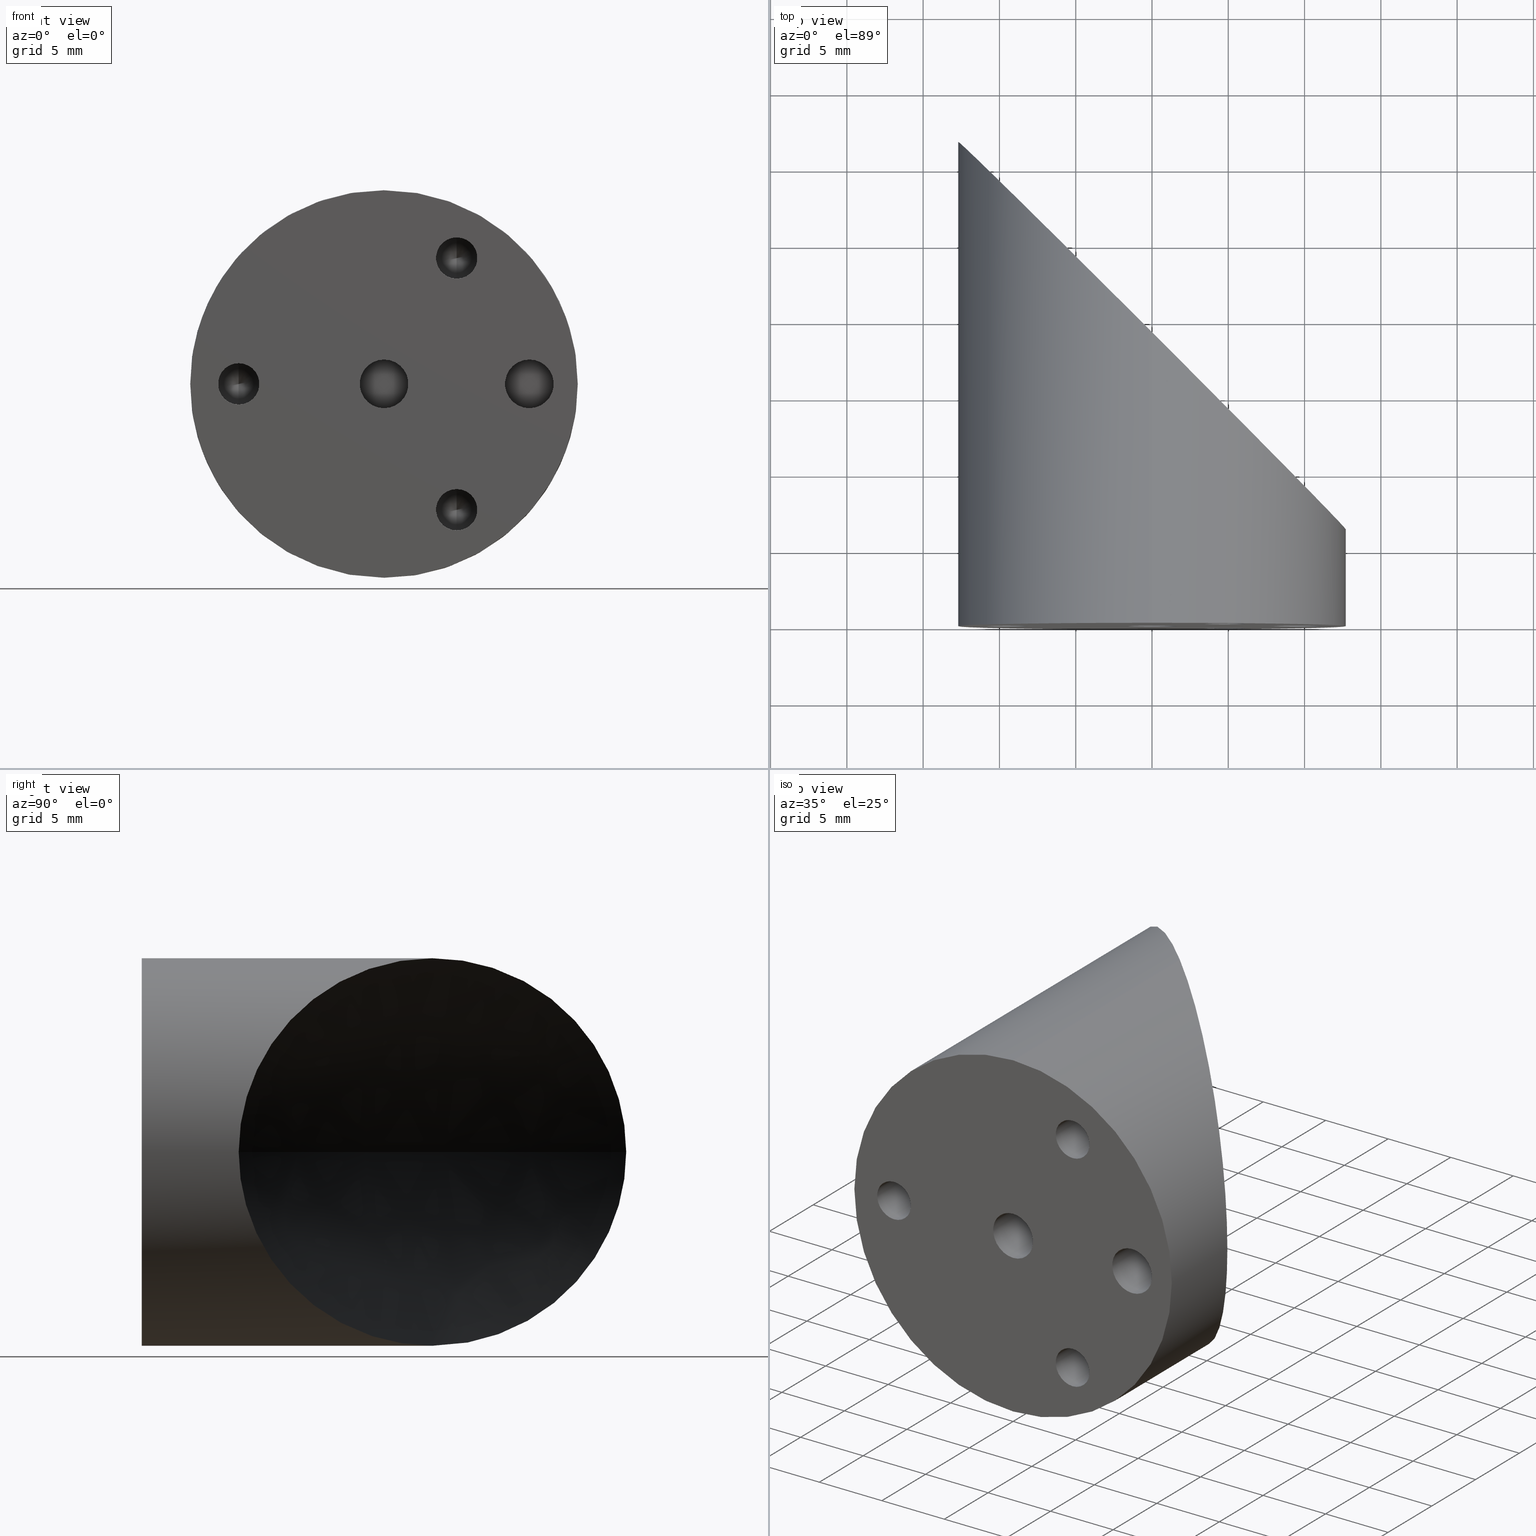
[diagram: canonical four-view strip — front | top / right | iso, engineering-drawing reading convention]
A machine part, canonical four-view strip (front | top / right | iso — engineering-drawing reading convention). The complete STEP part file that produces these views, byte-faithful:
ISO-10303-21;
HEADER;
FILE_DESCRIPTION (( 'STEP AP203' ),
    '1' );
FILE_NAME ('�25_36587.step',
    '2019-04-24T20:02:46',
    ( '' ),
    ( '' ),
    'SwSTEP 2.0',
    'SolidWorks 2018',
    '' );
FILE_SCHEMA (( 'CONFIG_CONTROL_DESIGN' ));
ENDSEC;

DATA;
#1 = CARTESIAN_POINT ( 'NONE',  ( -2.482858422990600999, 21.53285842295374763, 12.46009584649027424 ) ) ;
#2 = APPROVAL_PERSON_ORGANIZATION ( #44, #187, #55 ) ;
#3 = CONICAL_SURFACE ( 'NONE', #705, 1.352549999999998365, 1.029744258676653423 ) ;
#4 = CARTESIAN_POINT ( 'NONE',  ( 0.5863833158804326873, 15.83667139996548023, 8.899812384924731035 ) ) ;
#5 = ORIENTED_EDGE ( 'NONE', *, *, #232, .T. ) ;
#6 = ORIENTED_EDGE ( 'NONE', *, *, #559, .T. ) ;
#7 = CC_DESIGN_DATE_AND_TIME_ASSIGNMENT ( #492, #482, ( #542 ) ) ;
#8 = CARTESIAN_POINT ( 'NONE',  ( 1.952086997840879895E-16, 0.0000000000000000000, 1.593999999999998973 ) ) ;
#9 = CONICAL_SURFACE ( 'NONE', #632, 1.352549999999998365, 1.029744258676653423 ) ;
#10 = AXIS2_PLACEMENT_3D ( 'NONE', #208, #205, #641 ) ;
#11 = FACE_OUTER_BOUND ( 'NONE', #313, .T. ) ;
#12 = VERTEX_POINT ( 'NONE', #198 ) ;
#13 = CARTESIAN_POINT ( 'NONE',  ( 12.85240000000148264, 6.235928599968587172, -1.214306433183764966E-12 ) ) ;
#14 = CARTESIAN_POINT ( 'NONE',  ( 11.46083045844308046, 7.589169541525321527, -5.476537139817066802 ) ) ;
#15 = LINE ( 'NONE', #718, #574 ) ;
#16 = CARTESIAN_POINT ( 'NONE',  ( 12.85240000000137783, 6.235928599968588060, 3.338510146180537319 ) ) ;
#17 = EDGE_LOOP ( 'NONE', ( #541, #410, #688, #584 ) ) ;
#18 = DIRECTION ( 'NONE',  ( -0.0000000000000000000, -1.000000000000000000, -0.0000000000000000000 ) ) ;
#19 = EDGE_CURVE ( 'NONE', #150, #682, #46, .T. ) ;
#20 = VERTEX_POINT ( 'NONE', #255 ) ;
#21 = CARTESIAN_POINT ( 'NONE',  ( -9.525000000000000355, 6.169999999999999929, -1.352549999999999253 ) ) ;
#22 = CARTESIAN_POINT ( 'NONE',  ( 6.601847638495660142, 12.44815236147140070, -10.85593859369190817 ) ) ;
#23 = CARTESIAN_POINT ( 'NONE',  ( 4.762500000000009948, 6.169999999999999929, 9.601441971046769552 ) ) ;
#24 = CARTESIAN_POINT ( 'NONE',  ( 1.952086997840879648E-16, 4.320000000000000284, 1.593999999999998751 ) ) ;
#25 = ADVANCED_FACE ( 'NONE', ( #525 ), #322, .F. ) ;
#26 = CARTESIAN_POINT ( 'NONE',  ( -9.525000000000000355, 6.169999999999999929, 0.0000000000000000000 ) ) ;
#27 = LINE ( 'NONE', #74, #583 ) ;
#28 = LINE ( 'NONE', #336, #106 ) ;
#29 = DIRECTION ( 'NONE',  ( -0.0000000000000000000, -1.000000000000000000, -0.0000000000000000000 ) ) ;
#30 = ORIENTED_EDGE ( 'NONE', *, *, #791, .F. ) ;
#31 = CARTESIAN_POINT ( 'NONE',  ( -0.7187214910871000395, 19.76872149105121679, -12.70000000000004370 ) ) ;
#32 = CARTESIAN_POINT ( 'NONE',  ( 1.429385367669002260, 17.62061463229626312, 12.62441483667357112 ) ) ;
#33 = ADVANCED_FACE ( 'NONE', ( #11 ), #680, .F. ) ;
#34 = EDGE_CURVE ( 'NONE', #758, #760, #148, .T. ) ;
#35 = VECTOR ( 'NONE', #215, 1000.000000000000000 ) ;
#36 = ORIENTED_EDGE ( 'NONE', *, *, #609, .F. ) ;
#37 = VERTEX_POINT ( 'NONE', #196 ) ;
#38 = CARTESIAN_POINT ( 'NONE',  ( 0.0000000000000000000, 0.0000000000000000000, 0.0000000000000000000 ) ) ;
#39 = CARTESIAN_POINT ( 'NONE',  ( -9.525000000000000355, 6.169999999999999929, 0.0000000000000000000 ) ) ;
#40 = DIRECTION ( 'NONE',  ( -0.0000000000000000000, -1.000000000000000000, -0.0000000000000000000 ) ) ;
#41 = DIRECTION ( 'NONE',  ( 1.049727191138617956E-16, -0.5150380749100550437, 0.8571673007021117785 ) ) ;
#42 = AXIS2_PLACEMENT_3D ( 'NONE', #728, #788, #350 ) ;
#43 = CARTESIAN_POINT ( 'NONE',  ( 4.762500000000009948, 6.169999999999999929, -8.248891971046772298 ) ) ;
#44 = PERSON_AND_ORGANIZATION ( #212, #595 ) ;
#45 = VECTOR ( 'NONE', #581, 1000.000000000000000 ) ;
#46 = LINE ( 'NONE', #191, #388 ) ;
#47 = EDGE_LOOP ( 'NONE', ( #390, #36 ) ) ;
#48 = AXIS2_PLACEMENT_3D ( 'NONE', #784, #530, #527 ) ;
#49 = CARTESIAN_POINT ( 'NONE',  ( 4.762500000000009948, 2.721777511104993564E-17, -6.896341971046772379 ) ) ;
#50 = DIRECTION ( 'NONE',  ( -0.0000000000000000000, -1.000000000000000000, -0.0000000000000000000 ) ) ;
#51 = CARTESIAN_POINT ( 'NONE',  ( 4.762500000000009948, 6.169999999999999929, -6.896341971046773267 ) ) ;
#52 = AXIS2_PLACEMENT_3D ( 'NONE', #345, #405, #173 ) ;
#53 = PERSON_AND_ORGANIZATION ( #212, #595 ) ;
#54 = CARTESIAN_POINT ( 'NONE',  ( -10.43874274645388844, 29.48874274641420357, 7.247256372384000223 ) ) ;
#55 = APPROVAL_ROLE ( '' ) ;
#56 = ORIENTED_EDGE ( 'NONE', *, *, #172, .F. ) ;
#57 = EDGE_LOOP ( 'NONE', ( #743, #139, #781 ) ) ;
#58 = VERTEX_POINT ( 'NONE', #144 ) ;
#59 = DIRECTION ( 'NONE',  ( 0.0000000000000000000, 0.0000000000000000000, -1.000000000000000000 ) ) ;
#60 = AXIS2_PLACEMENT_3D ( 'NONE', #94, #86, #513 ) ;
#61 = SECURITY_CLASSIFICATION_LEVEL ( 'unclassified' ) ;
#62 = CARTESIAN_POINT ( 'NONE',  ( -8.803671973456085098, 27.85367197341700418, 9.189081186816681068 ) ) ;
#63 = CARTESIAN_POINT ( 'NONE',  ( 1.787247943871000055, 17.26275205609421448, 12.57874327586289098 ) ) ;
#64 = APPROVAL_PERSON_ORGANIZATION ( #76, #579, #531 ) ;
#65 = CIRCLE ( 'NONE', #754, 1.352549999999997477 ) ;
#66 = CYLINDRICAL_SURFACE ( 'NONE', #487, 1.593999999999998973 ) ;
#67 = CARTESIAN_POINT ( 'NONE',  ( -6.925631433281011162, 25.97563143324251556, 10.67235901553399557 ) ) ;
#68 = VERTEX_POINT ( 'NONE', #21 ) ;
#69 = AXIS2_PLACEMENT_3D ( 'NONE', #770, #332, #272 ) ;
#70 = ORIENTED_EDGE ( 'NONE', *, *, #190, .T. ) ;
#71 = ORIENTED_EDGE ( 'NONE', *, *, #691, .F. ) ;
#72 = VERTEX_POINT ( 'NONE', #634 ) ;
#73 = CARTESIAN_POINT ( 'NONE',  ( 11.83646679624296816, 7.213533203726102627, -4.609351959705408674 ) ) ;
#74 = CARTESIAN_POINT ( 'NONE',  ( 4.762500000000009948, 0.0000000000000000000, -9.601441971046771329 ) ) ;
#75 = CARTESIAN_POINT ( 'NONE',  ( 5.605679513964143545, 13.44432048600252472, -11.42145074648603398 ) ) ;
#76 = PERSON_AND_ORGANIZATION ( #212, #595 ) ;
#77 = CARTESIAN_POINT ( 'NONE',  ( 4.762500000000009948, 6.169999999999999929, -8.248891971046772298 ) ) ;
#78 = FACE_OUTER_BOUND ( 'NONE', #194, .T. ) ;
#79 = ORIENTED_EDGE ( 'NONE', *, *, #136, .T. ) ;
#80 = CARTESIAN_POINT ( 'NONE',  ( 8.802940517943984133, 10.24705948202286088, -9.188963411443394236 ) ) ;
#81 = AXIS2_PLACEMENT_3D ( 'NONE', #414, #237, #610 ) ;
#82 = ORIENTED_EDGE ( 'NONE', *, *, #491, .T. ) ;
#83 = ADVANCED_FACE ( 'NONE', ( #515, #304, #245, #230, #789, #282 ), #496, .F. ) ;
#84 = CARTESIAN_POINT ( 'NONE',  ( -9.525000000000000355, 6.169999999999999929, 1.352549999999999253 ) ) ;
#85 = EDGE_CURVE ( 'NONE', #468, #682, #536, .T. ) ;
#86 = DIRECTION ( 'NONE',  ( -0.0000000000000000000, -1.000000000000000000, -0.0000000000000000000 ) ) ;
#87 = CIRCLE ( 'NONE', #42, 1.593999999999999861 ) ;
#88 = VECTOR ( 'NONE', #268, 1000.000000000000000 ) ;
#89 = DIRECTION ( 'NONE',  ( 0.0000000000000000000, 0.0000000000000000000, -1.000000000000000000 ) ) ;
#90 = CARTESIAN_POINT ( 'NONE',  ( -8.829742492721949120E-13, 15.83667139996547846, -4.435527708527529533 ) ) ;
#91 = VERTEX_POINT ( 'NONE', #570 ) ;
#92 = DIRECTION ( 'NONE',  ( -0.0000000000000000000, -1.000000000000000000, -0.0000000000000000000 ) ) ;
#93 = ADVANCED_FACE ( 'NONE', ( #710 ), #331, .F. ) ;
#94 = CARTESIAN_POINT ( 'NONE',  ( 9.525000000000000355, 0.0000000000000000000, 0.0000000000000000000 ) ) ;
#95 = DIRECTION ( 'NONE',  ( 0.0000000000000000000, 0.0000000000000000000, -1.000000000000000000 ) ) ;
#96 = FACE_OUTER_BOUND ( 'NONE', #347, .T. ) ;
#97 = CARTESIAN_POINT ( 'NONE',  ( 10.44377629980238353, 8.606223700165564594, 7.239865530170297880 ) ) ;
#98 = VERTEX_POINT ( 'NONE', #519 ) ;
#99 = ORIENTED_EDGE ( 'NONE', *, *, #459, .F. ) ;
#100 = CARTESIAN_POINT ( 'NONE',  ( -12.69999999999882867, 31.74999999995834798, -0.5052789101170253039 ) ) ;
#101 = DIRECTION ( 'NONE',  ( 0.0000000000000000000, -0.0000000000000000000, 1.000000000000000000 ) ) ;
#102 = DIRECTION ( 'NONE',  ( 0.0000000000000000000, 0.0000000000000000000, -1.000000000000000000 ) ) ;
#103 = CC_DESIGN_PERSON_AND_ORGANIZATION_ASSIGNMENT ( #611, #116, ( #528 ) ) ;
#104 = CARTESIAN_POINT ( 'NONE',  ( 4.762500000000009948, 0.0000000000000000000, -8.248891971046772298 ) ) ;
#105 = FACE_OUTER_BOUND ( 'NONE', #577, .T. ) ;
#106 = VECTOR ( 'NONE', #168, 1000.000000000000000 ) ;
#107 = DIRECTION ( 'NONE',  ( -0.0000000000000000000, -1.000000000000000000, -0.0000000000000000000 ) ) ;
#108 = CARTESIAN_POINT ( 'NONE',  ( 4.762500000000009948, 0.0000000000000000000, -6.896341971046772379 ) ) ;
#109 = ORIENTED_EDGE ( 'NONE', *, *, #19, .F. ) ;
#110 = EDGE_LOOP ( 'NONE', ( #213, #120, #6, #334 ) ) ;
#111 = EDGE_CURVE ( 'NONE', #192, #285, #447, .T. ) ;
#112 = PLANE ( 'NONE',  #569 ) ;
#113 = DIRECTION ( 'NONE',  ( -0.0000000000000000000, -1.000000000000000000, -0.0000000000000000000 ) ) ;
#114 = CARTESIAN_POINT ( 'NONE',  ( 12.67001750688577744, 6.379982493083709905, 1.009839841562243823 ) ) ;
#115 = CARTESIAN_POINT ( 'NONE',  ( -1.422368097287102229, 20.47236809725067275, 12.64045753939384298 ) ) ;
#116 = PERSON_AND_ORGANIZATION_ROLE ( 'creator' ) ;
#117 = COORDINATED_UNIVERSAL_TIME_OFFSET ( 5, 0, .BEHIND. ) ;
#118 = DIRECTION ( 'NONE',  ( 0.0000000000000000000, 0.0000000000000000000, -1.000000000000000000 ) ) ;
#119 = CIRCLE ( 'NONE', #383, 1.593999999999999861 ) ;
#120 = ORIENTED_EDGE ( 'NONE', *, *, #34, .F. ) ;
#121 = EDGE_LOOP ( 'NONE', ( #99, #305 ) ) ;
#122 = CARTESIAN_POINT ( 'NONE',  ( -10.92274524185037166, 29.97274524181049671, 6.494898877991809982 ) ) ;
#123 = AXIS2_PLACEMENT_3D ( 'NONE', #694, #145, #706 ) ;
#124 = CARTESIAN_POINT ( 'NONE',  ( 4.762500000000009948, 6.169999999999999929, 8.248891971046772298 ) ) ;
#125 = CARTESIAN_POINT ( 'NONE',  ( 4.919003763048981348, 14.13099623691744888, 11.73128122438705567 ) ) ;
#126 = EDGE_CURVE ( 'NONE', #780, #58, #128, .T. ) ;
#127 = FACE_OUTER_BOUND ( 'NONE', #735, .T. ) ;
#128 = CIRCLE ( 'NONE', #265, 1.352549999999999253 ) ;
#129 = DIRECTION ( 'NONE',  ( -0.0000000000000000000, -1.000000000000000000, -0.0000000000000000000 ) ) ;
#130 = CARTESIAN_POINT ( 'NONE',  ( 2.849473519728098037, 16.20052648023753861, 12.39704203074799871 ) ) ;
#131 = ORIENTED_EDGE ( 'NONE', *, *, #648, .T. ) ;
#132 = ORIENTED_EDGE ( 'NONE', *, *, #250, .T. ) ;
#133 = CC_DESIGN_SECURITY_CLASSIFICATION ( #542, ( #602 ) ) ;
#134 = CARTESIAN_POINT ( 'NONE',  ( 11.15152537328789606, 7.898474626680381583, -6.094740126766177823 ) ) ;
#135 = DATE_AND_TIME ( #535, #777 ) ;
#136 = EDGE_CURVE ( 'NONE', #58, #780, #640, .T. ) ;
#137 = FACE_OUTER_BOUND ( 'NONE', #690, .T. ) ;
#138 = B_SPLINE_CURVE_WITH_KNOTS ( 'NONE', 3,
 ( #424, #603, #352, #736, #544, #548, #793, #236, #229, #182, #673, #485, #122, #54, #421, #666, #62, #732, #67, #677, #607, #668, #235, #357, #1, #115, #180, #741 ),
 .UNSPECIFIED., .F., .F.,
 ( 4, 2, 2, 2, 2, 2, 2, 2, 2, 2, 2, 2, 2, 4 ),
 ( 0.02405136362947056863, 0.02480170670295717139, 0.02555204977644377415, 0.02705273592341697966, 0.02855342207039018865, 0.03005410821736339416, 0.03155479436433659968, 0.03305548051130981213, 0.03605685280525622316, 0.03905822509920264113, 0.04205959739314905910, 0.04356028354012226461, 0.04506096968709547013, 0.04806234198104189503 ),
 .UNSPECIFIED. ) ;
#139 = ORIENTED_EDGE ( 'NONE', *, *, #301, .T. ) ;
#140 = DIRECTION ( 'NONE',  ( 0.0000000000000000000, 1.000000000000000000, 0.0000000000000000000 ) ) ;
#141 = ORIENTED_EDGE ( 'NONE', *, *, #709, .T. ) ;
#142 = CARTESIAN_POINT ( 'NONE',  ( 2.855152482995872543, 16.19484751696936442, -12.39579623565930788 ) ) ;
#143 = ADVANCED_FACE ( 'NONE', ( #506 ), #384, .T. ) ;
#144 = CARTESIAN_POINT ( 'NONE',  ( 4.762500000000009948, 2.721777511104993564E-17, 9.601441971046771329 ) ) ;
#145 = DIRECTION ( 'NONE',  ( -0.0000000000000000000, -1.000000000000000000, -0.0000000000000000000 ) ) ;
#146 = ADVANCED_FACE ( 'NONE', ( #368 ), #478, .F. ) ;
#147 = CIRCLE ( 'NONE', #722, 1.352549999999998365 ) ;
#148 = CIRCLE ( 'NONE', #551, 1.352549999999998365 ) ;
#149 = AXIS2_PLACEMENT_3D ( 'NONE', #165, #589, #159 ) ;
#150 = VERTEX_POINT ( 'NONE', #84 ) ;
#151 = CARTESIAN_POINT ( 'NONE',  ( 4.762500000000009948, 2.721777511104993564E-17, -8.248891971046772298 ) ) ;
#152 = DIRECTION ( 'NONE',  ( -0.0000000000000000000, -1.000000000000000000, -0.0000000000000000000 ) ) ;
#153 = CARTESIAN_POINT ( 'NONE',  ( 14.13950747727907320, 6.235928599968587172, -9.799420072203130161 ) ) ;
#154 = EDGE_CURVE ( 'NONE', #430, #712, #687, .T. ) ;
#155 = DIRECTION ( 'NONE',  ( 0.0000000000000000000, 0.0000000000000000000, -1.000000000000000000 ) ) ;
#156 = CYLINDRICAL_SURFACE ( 'NONE', #772, 1.352549999999999253 ) ;
#157 = CARTESIAN_POINT ( 'NONE',  ( -12.12863659686807516, 31.94072859996088454, -11.06810423641420371 ) ) ;
#158 = ORIENTED_EDGE ( 'NONE', *, *, #491, .F. ) ;
#159 = DIRECTION ( 'NONE',  ( 0.0000000000000000000, 0.0000000000000000000, -1.000000000000000000 ) ) ;
#160 = CARTESIAN_POINT ( 'NONE',  ( 7.561611379893681928, 11.48838862007336914, 10.21109426996262926 ) ) ;
#161 = EDGE_LOOP ( 'NONE', ( #141, #132 ) ) ;
#162 = DIRECTION ( 'NONE',  ( -0.0000000000000000000, -1.000000000000000000, -0.0000000000000000000 ) ) ;
#163 = CARTESIAN_POINT ( 'NONE',  ( 11.75198745430705749, 7.298012545661985762, 4.838766919932773192 ) ) ;
#164 = APPROVAL ( #739, 'UNSPECIFIED' ) ;
#165 = CARTESIAN_POINT ( 'NONE',  ( 0.0000000000000000000, 200.0000000000000000, 0.0000000000000000000 ) ) ;
#166 = CARTESIAN_POINT ( 'NONE',  ( 10.92500611823181345, 8.124993881736317647, 6.490944277365154669 ) ) ;
#167 = DATE_AND_TIME ( #740, #697 ) ;
#168 = DIRECTION ( 'NONE',  ( -0.0000000000000000000, -1.000000000000000000, -0.0000000000000000000 ) ) ;
#169 = VECTOR ( 'NONE', #783, 1000.000000000000000 ) ;
#170 = LINE ( 'NONE', #343, #670 ) ;
#171 = ORIENTED_EDGE ( 'NONE', *, *, #126, .F. ) ;
#172 = EDGE_CURVE ( 'NONE', #630, #438, #509, .T. ) ;
#173 = DIRECTION ( 'NONE',  ( 0.0000000000000000000, 0.0000000000000000000, -1.000000000000000000 ) ) ;
#174 = PERSON_AND_ORGANIZATION_ROLE ( 'design_supplier' ) ;
#175 = APPLICATION_PROTOCOL_DEFINITION ( 'international standard', 'config_control_design', 1994, #737 ) ;
#176 = DIRECTION ( 'NONE',  ( 0.0000000000000000000, -0.0000000000000000000, 1.000000000000000000 ) ) ;
#177 = CC_DESIGN_PERSON_AND_ORGANIZATION_ASSIGNMENT ( #341, #174, ( #602 ) ) ;
#178 =( NAMED_UNIT ( * ) PLANE_ANGLE_UNIT ( ) SI_UNIT ( $, .RADIAN. ) );
#179 = FACE_OUTER_BOUND ( 'NONE', #379, .T. ) ;
#180 = CARTESIAN_POINT ( 'NONE',  ( -0.7125630298310842159, 19.76256302979483337, 12.69999999999950369 ) ) ;
#181 = ORIENTED_EDGE ( 'NONE', *, *, #609, .T. ) ;
#182 = CARTESIAN_POINT ( 'NONE',  ( -11.75175387139167604, 30.80175387135199117, 4.839139750491159297 ) ) ;
#183 = PERSON_AND_ORGANIZATION_ROLE ( 'classification_officer' ) ;
#184 = LINE ( 'NONE', #280, #45 ) ;
#185 = CIRCLE ( 'NONE', #762, 1.593999999999999417 ) ;
#186 = ORIENTED_EDGE ( 'NONE', *, *, #691, .T. ) ;
#187 = APPROVAL ( #794, 'UNSPECIFIED' ) ;
#188 = ADVANCED_FACE ( 'NONE', ( #239 ), #210, .F. ) ;
#189 = DIRECTION ( 'NONE',  ( 0.0000000000000000000, 0.0000000000000000000, -1.000000000000000000 ) ) ;
#190 = EDGE_CURVE ( 'NONE', #402, #516, #170, .T. ) ;
#191 = CARTESIAN_POINT ( 'NONE',  ( -9.525000000000000355, 0.0000000000000000000, 1.352549999999999253 ) ) ;
#192 = VERTEX_POINT ( 'NONE', #49 ) ;
#193 = CARTESIAN_POINT ( 'NONE',  ( 12.70000000000023377, 6.349999999969435649, 0.0000000000000000000 ) ) ;
#194 = EDGE_LOOP ( 'NONE', ( #556, #790, #181, #557 ) ) ;
#195 = CARTESIAN_POINT ( 'NONE',  ( 0.0000000000000000000, 7.960204194457993925E-19, -1.593999999999999417 ) ) ;
#196 = CARTESIAN_POINT ( 'NONE',  ( -3.132693757179637918E-12, 19.04999999996803695, 12.70000000000026041 ) ) ;
#197 = CARTESIAN_POINT ( 'NONE',  ( 6.931521098869869668, 12.11847890109790526, -10.64879662899022605 ) ) ;
#198 = CARTESIAN_POINT ( 'NONE',  ( 4.762500000000008171, 6.982694030265727214, 8.248891971046772298 ) ) ;
#199 = CARTESIAN_POINT ( 'NONE',  ( 0.0000000000000000000, 4.320000000000000284, -1.593999999999998751 ) ) ;
#200 = AXIS2_PLACEMENT_3D ( 'NONE', #279, #663, #95 ) ;
#201 = LINE ( 'NONE', #108, #426 ) ;
#202 = CONICAL_SURFACE ( 'NONE', #786, 1.352549999999999253, 1.029744258676653645 ) ;
#203 = CARTESIAN_POINT ( 'NONE',  ( -9.525000000000000355, 6.169999999999999929, 0.0000000000000000000 ) ) ;
#204 = ORIENTED_EDGE ( 'NONE', *, *, #85, .T. ) ;
#205 = DIRECTION ( 'NONE',  ( -0.0000000000000000000, -1.000000000000000000, -0.0000000000000000000 ) ) ;
#206 = ADVANCED_FACE ( 'NONE', ( #346 ), #699, .F. ) ;
#207 = EDGE_CURVE ( 'NONE', #37, #20, #363, .T. ) ;
#208 = CARTESIAN_POINT ( 'NONE',  ( 4.762500000000009948, 2.721777511104993564E-17, -8.248891971046772298 ) ) ;
#209 = COORDINATED_UNIVERSAL_TIME_OFFSET ( 5, 0, .BEHIND. ) ;
#210 = CYLINDRICAL_SURFACE ( 'NONE', #337, 1.593999999999998973 ) ;
#211 = ORIENTED_EDGE ( 'NONE', *, *, #559, .F. ) ;
#212 = PERSON ( 'UNSPECIFIED', 'UNSPECIFIED', 'UNSPECIFIED', ('UNSPECIFIED'), ('UNSPECIFIED'), ('UNSPECIFIED') ) ;
#213 = ORIENTED_EDGE ( 'NONE', *, *, #342, .F. ) ;
#214 = DIRECTION ( 'NONE',  ( -0.0000000000000000000, -1.000000000000000000, -0.0000000000000000000 ) ) ;
#215 = DIRECTION ( 'NONE',  ( -0.0000000000000000000, -1.000000000000000000, -0.0000000000000000000 ) ) ;
#216 = EDGE_CURVE ( 'NONE', #682, #468, #356, .T. ) ;
#217 = CARTESIAN_POINT ( 'NONE',  ( 4.762500000000009948, 0.0000000000000000000, 8.248891971046772298 ) ) ;
#218 = CARTESIAN_POINT ( 'NONE',  ( 1.555301434917138433E-15, 200.0000000000000000, 12.69999999999999929 ) ) ;
#219 = CARTESIAN_POINT ( 'NONE',  ( -9.525000000000000355, 2.721777511104993564E-17, -1.352549999999999253 ) ) ;
#220 = CARTESIAN_POINT ( 'NONE',  ( 12.22725598296658234, 6.822744017001713956, 3.467880644624239395 ) ) ;
#221 = CYLINDRICAL_SURFACE ( 'NONE', #624, 1.352549999999999253 ) ;
#222 = CARTESIAN_POINT ( 'NONE',  ( -11.56770164379184251, 30.61770164375197467, -5.262622158203092759 ) ) ;
#223 = ORIENTED_EDGE ( 'NONE', *, *, #367, .T. ) ;
#224 = DIRECTION ( 'NONE',  ( -0.0000000000000000000, -1.000000000000000000, -0.0000000000000000000 ) ) ;
#225 = ORIENTED_EDGE ( 'NONE', *, *, #463, .F. ) ;
#226 = DIRECTION ( 'NONE',  ( 0.0000000000000000000, 0.0000000000000000000, 1.000000000000000000 ) ) ;
#227 = CARTESIAN_POINT ( 'NONE',  ( 4.762500000000009948, 2.721777511104993564E-17, -9.601441971046771329 ) ) ;
#228 = LINE ( 'NONE', #408, #169 ) ;
#229 = CARTESIAN_POINT ( 'NONE',  ( -12.08388084472762181, 31.13388084468780193, 3.937107606984827424 ) ) ;
#230 = FACE_BOUND ( 'NONE', #365, .T. ) ;
#231 = ORIENTED_EDGE ( 'NONE', *, *, #243, .T. ) ;
#232 = EDGE_CURVE ( 'NONE', #399, #150, #427, .T. ) ;
#233 = DIRECTION ( 'NONE',  ( -0.0000000000000000000, -1.000000000000000000, -0.0000000000000000000 ) ) ;
#234 = ORIENTED_EDGE ( 'NONE', *, *, #407, .T. ) ;
#235 = CARTESIAN_POINT ( 'NONE',  ( -3.539755003752532048, 22.58975500371468570, 12.20214773638783434 ) ) ;
#236 = CARTESIAN_POINT ( 'NONE',  ( -12.22787846955917246, 31.27787846951880724, 3.465771320352295515 ) ) ;
#237 = DIRECTION ( 'NONE',  ( 0.0000000000000000000, 0.0000000000000000000, 1.000000000000000000 ) ) ;
#238 = CIRCLE ( 'NONE', #585, 1.593999999999999417 ) ;
#239 = FACE_OUTER_BOUND ( 'NONE', #587, .T. ) ;
#240 = EDGE_LOOP ( 'NONE', ( #30, #495, #480, #628, #241 ) ) ;
#241 = ORIENTED_EDGE ( 'NONE', *, *, #425, .F. ) ;
#242 = AXIS2_PLACEMENT_3D ( 'NONE', #596, #723, #226 ) ;
#243 = EDGE_CURVE ( 'NONE', #749, #516, #620, .T. ) ;
#244 = CIRCLE ( 'NONE', #290, 1.352549999999999253 ) ;
#245 = FACE_BOUND ( 'NONE', #613, .T. ) ;
#246 = ORIENTED_EDGE ( 'NONE', *, *, #765, .T. ) ;
#247 = ORIENTED_EDGE ( 'NONE', *, *, #111, .T. ) ;
#248 = CARTESIAN_POINT ( 'NONE',  ( 12.54206478576839601, 6.507935214200748497, -2.012280748583813228 ) ) ;
#249 = CARTESIAN_POINT ( 'NONE',  ( 11.74712600856367928, 7.302873991405227194, -4.832260201967334190 ) ) ;
#250 = EDGE_CURVE ( 'NONE', #422, #430, #598, .T. ) ;
#251 = FACE_OUTER_BOUND ( 'NONE', #489, .T. ) ;
#252 = ORIENTED_EDGE ( 'NONE', *, *, #419, .T. ) ;
#253 = DIRECTION ( 'NONE',  ( 0.0000000000000000000, 0.0000000000000000000, -1.000000000000000000 ) ) ;
#254 = ORIENTED_EDGE ( 'NONE', *, *, #216, .F. ) ;
#255 = CARTESIAN_POINT ( 'NONE',  ( 1.555301434917138433E-15, 0.0000000000000000000, 12.69999999999999929 ) ) ;
#256 = CARTESIAN_POINT ( 'NONE',  ( -12.70000000000156604, 31.74999999996064304, -1.986872866024990226E-12 ) ) ;
#257 = CARTESIAN_POINT ( 'NONE',  ( -2.838850519019424645, 21.88885051898299494, -12.39925131919163270 ) ) ;
#258 = AXIS2_PLACEMENT_3D ( 'NONE', #782, #411, #731 ) ;
#259 = VECTOR ( 'NONE', #40, 1000.000000000000000 ) ;
#260 = ORIENTED_EDGE ( 'NONE', *, *, #355, .T. ) ;
#261 = CARTESIAN_POINT ( 'NONE',  ( -8.491001151323196439, 27.54100115128509074, -9.452683051088573762 ) ) ;
#262 = ORIENTED_EDGE ( 'NONE', *, *, #648, .F. ) ;
#263 = EDGE_LOOP ( 'NONE', ( #549, #621 ) ) ;
#264 = CARTESIAN_POINT ( 'NONE',  ( -1.430184995684885552, 20.48018499564900097, -12.63942547839616992 ) ) ;
#265 = AXIS2_PLACEMENT_3D ( 'NONE', #393, #92, #708 ) ;
#266 = CALENDAR_DATE ( 2019, 24, 4 ) ;
#267 = CARTESIAN_POINT ( 'NONE',  ( -3.132693757179637918E-12, 19.04999999996803695, 12.70000000000026041 ) ) ;
#268 = DIRECTION ( 'NONE',  ( -0.0000000000000000000, -1.000000000000000000, -0.0000000000000000000 ) ) ;
#269 = VECTOR ( 'NONE', #339, 1000.000000000000000 ) ;
#270 = EDGE_LOOP ( 'NONE', ( #508, #769, #131 ) ) ;
#271 = ORIENTED_EDGE ( 'NONE', *, *, #190, .F. ) ;
#272 = DIRECTION ( 'NONE',  ( 0.0000000000000000000, 0.0000000000000000000, -1.000000000000000000 ) ) ;
#273 = DIRECTION ( 'NONE',  ( -0.0000000000000000000, -1.000000000000000000, -0.0000000000000000000 ) ) ;
#274 = CARTESIAN_POINT ( 'NONE',  ( 8.796537155208987713, 10.25346284472990455, 9.195328755256735320 ) ) ;
#275 = CARTESIAN_POINT ( 'NONE',  ( -10.94289192893952567, 29.99289192889989764, -6.512355137023788210 ) ) ;
#276 = AXIS2_PLACEMENT_3D ( 'NONE', #151, #572, #89 ) ;
#277 = CARTESIAN_POINT ( 'NONE',  ( 9.524999999999998579, 4.320000000000000284, 0.0000000000000000000 ) ) ;
#278 = UNCERTAINTY_MEASURE_WITH_UNIT (LENGTH_MEASURE( 1.000000000000000082E-05 ), #733, 'distance_accuracy_value', 'NONE');
#279 = CARTESIAN_POINT ( 'NONE',  ( 4.762500000000009948, 6.169999999999999929, -8.248891971046772298 ) ) ;
#280 = CARTESIAN_POINT ( 'NONE',  ( 0.0000000000000000000, 200.0000000000000000, -12.69999999999999929 ) ) ;
#281 = EDGE_CURVE ( 'NONE', #68, #468, #409, .T. ) ;
#282 = FACE_OUTER_BOUND ( 'NONE', #121, .T. ) ;
#283 = CARTESIAN_POINT ( 'NONE',  ( -8.790063518121989716, 27.84006351808308466, -9.175955759524381250 ) ) ;
#284 = CARTESIAN_POINT ( 'NONE',  ( 1.952086997840880388E-16, 7.960204194457993925E-19, 1.593999999999999417 ) ) ;
#285 = VERTEX_POINT ( 'NONE', #227 ) ;
#286 = ORIENTED_EDGE ( 'NONE', *, *, #85, .F. ) ;
#287 = DIRECTION ( 'NONE',  ( 0.0000000000000000000, 0.0000000000000000000, -1.000000000000000000 ) ) ;
#288 = DIRECTION ( 'NONE',  ( -0.0000000000000000000, -1.000000000000000000, -0.0000000000000000000 ) ) ;
#289 = CARTESIAN_POINT ( 'NONE',  ( 12.70000000000023377, 6.349999999969435649, 0.0000000000000000000 ) ) ;
#290 = AXIS2_PLACEMENT_3D ( 'NONE', #26, #18, #439 ) ;
#291 = DIRECTION ( 'NONE',  ( -0.0000000000000000000, -1.000000000000000000, -0.0000000000000000000 ) ) ;
#292 = LOCAL_TIME ( 16, 2, 46.00000000000000000, #563 ) ;
#293 = CARTESIAN_POINT ( 'NONE',  ( -10.66088830963618506, 31.94072859996088809, 16.55859999971454144 ) ) ;
#294 = APPROVAL_ROLE ( '' ) ;
#295 = CYLINDRICAL_SURFACE ( 'NONE', #616, 1.352549999999999253 ) ;
#296 = EDGE_LOOP ( 'NONE', ( #567, #223, #550 ) ) ;
#297 = EDGE_CURVE ( 'NONE', #72, #98, #28, .T. ) ;
#298 = ORIENTED_EDGE ( 'NONE', *, *, #463, .T. ) ;
#299 = CARTESIAN_POINT ( 'NONE',  ( 4.762500000000009948, 6.169999999999999929, 8.248891971046772298 ) ) ;
#300 = CARTESIAN_POINT ( 'NONE',  ( 1.229823715701091759E-13, 15.83667139996548023, 4.469223756600618103 ) ) ;
#301 = EDGE_CURVE ( 'NONE', #12, #758, #15, .T. ) ;
#302 = PERSON_AND_ORGANIZATION ( #212, #595 ) ;
#303 = SHAPE_DEFINITION_REPRESENTATION ( #606, #396 ) ;
#304 = FACE_BOUND ( 'NONE', #263, .T. ) ;
#305 = ORIENTED_EDGE ( 'NONE', *, *, #308, .F. ) ;
#306 = CC_DESIGN_APPROVAL ( #187, ( #542 ) ) ;
#307 = CARTESIAN_POINT ( 'NONE',  ( 7.886829916384055394, 11.16317008358242191, -9.962309795164632220 ) ) ;
#308 = EDGE_CURVE ( 'NONE', #20, #370, #730, .T. ) ;
#309 = B_SPLINE_CURVE_WITH_KNOTS ( 'NONE', 2,
 ( #693, #311, #193 ),
 .UNSPECIFIED., .F., .F.,
 ( 3, 3 ),
 ( 0.4968500992079120104, 0.4981100595247471841 ),
 .UNSPECIFIED. ) ;
#310 = DIRECTION ( 'NONE',  ( 0.0000000000000000000, 0.0000000000000000000, -1.000000000000000000 ) ) ;
#311 = CARTESIAN_POINT ( 'NONE',  ( -8.291978215169137911E-13, 15.87499999996637357, 0.0000000000000000000 ) ) ;
#312 = FACE_OUTER_BOUND ( 'NONE', #161, .T. ) ;
#313 = EDGE_LOOP ( 'NONE', ( #271, #672, #231 ) ) ;
#314 = ORIENTED_EDGE ( 'NONE', *, *, #683, .T. ) ;
#315 = CARTESIAN_POINT ( 'NONE',  ( 4.762500000000009948, 6.169999999999999929, 6.896341971046773267 ) ) ;
#316 = CARTESIAN_POINT ( 'NONE',  ( 12.40164334135289437, 6.648356658616227044, -2.747705071860363724 ) ) ;
#317 = CARTESIAN_POINT ( 'NONE',  ( 11.55946391817771257, 7.490536081791117518, -5.265406161440742139 ) ) ;
#318 = DATE_AND_TIME ( #486, #582 ) ;
#319 = FACE_OUTER_BOUND ( 'NONE', #57, .T. ) ;
#320 = CARTESIAN_POINT ( 'NONE',  ( -4.913277181484719591, 23.96327718144716812, -11.71707468598239821 ) ) ;
#321 = ADVANCED_FACE ( 'NONE', ( #179 ), #202, .F. ) ;
#322 = CYLINDRICAL_SURFACE ( 'NONE', #726, 1.352549999999999253 ) ;
#323 = ORIENTED_EDGE ( 'NONE', *, *, #381, .F. ) ;
#324 = CARTESIAN_POINT ( 'NONE',  ( 4.762500000000009948, 6.169999999999999929, 9.601441971046769552 ) ) ;
#325 = CARTESIAN_POINT ( 'NONE',  ( -7.572542253004445278, 26.62254225296669574, -10.22682127989792278 ) ) ;
#326 = EDGE_CURVE ( 'NONE', #440, #712, #185, .T. ) ;
#327 = ADVANCED_FACE ( 'NONE', ( #78 ), #66, .F. ) ;
#328 = CARTESIAN_POINT ( 'NONE',  ( -2.012279232133096230E-13, 19.04999999996460858, -12.70000000000005080 ) ) ;
#329 = AXIS2_PLACEMENT_3D ( 'NONE', #217, #520, #484 ) ;
#330 = ADVANCED_FACE ( 'NONE', ( #312 ), #112, .F. ) ;
#331 = CYLINDRICAL_SURFACE ( 'NONE', #60, 1.593999999999998973 ) ;
#332 = DIRECTION ( 'NONE',  ( -0.0000000000000000000, -1.000000000000000000, -0.0000000000000000000 ) ) ;
#333 = CARTESIAN_POINT ( 'NONE',  ( -9.525000000000000355, 2.721777511104993564E-17, 0.0000000000000000000 ) ) ;
#334 = ORIENTED_EDGE ( 'NONE', *, *, #126, .T. ) ;
#335 = EDGE_LOOP ( 'NONE', ( #575, #70, #298 ) ) ;
#336 = CARTESIAN_POINT ( 'NONE',  ( 9.525000000000000355, 0.0000000000000000000, 1.593999999999998973 ) ) ;
#337 = AXIS2_PLACEMENT_3D ( 'NONE', #592, #348, #600 ) ;
#338 = DIRECTION ( 'NONE',  ( -0.0000000000000000000, -1.000000000000000000, -0.0000000000000000000 ) ) ;
#339 = DIRECTION ( 'NONE',  ( 0.0000000000000000000, -0.5150380749100549327, -0.8571673007021118895 ) ) ;
#340 = CARTESIAN_POINT ( 'NONE',  ( 6.915862950740484294, 12.13413704922630565, 10.65904557158737376 ) ) ;
#341 = PERSON_AND_ORGANIZATION ( #212, #595 ) ;
#342 = EDGE_CURVE ( 'NONE', #760, #58, #698, .T. ) ;
#343 = CARTESIAN_POINT ( 'NONE',  ( 4.762500000000009948, 6.169999999999999929, -6.896341971046773267 ) ) ;
#344 = CIRCLE ( 'NONE', #512, 1.352549999999999253 ) ;
#345 = CARTESIAN_POINT ( 'NONE',  ( 0.0000000000000000000, 200.0000000000000000, 0.0000000000000000000 ) ) ;
#346 = FACE_OUTER_BOUND ( 'NONE', #335, .T. ) ;
#347 = EDGE_LOOP ( 'NONE', ( #497, #186, #659 ) ) ;
#348 = DIRECTION ( 'NONE',  ( -0.0000000000000000000, -1.000000000000000000, -0.0000000000000000000 ) ) ;
#349 = DIRECTION ( 'NONE',  ( 0.0000000000000000000, 1.000000000000000000, 0.0000000000000000000 ) ) ;
#350 = DIRECTION ( 'NONE',  ( 0.0000000000000000000, 0.0000000000000000000, -1.000000000000000000 ) ) ;
#351 = CARTESIAN_POINT ( 'NONE',  ( 9.525000000000000355, 0.0000000000000000000, 0.0000000000000000000 ) ) ;
#352 = CARTESIAN_POINT ( 'NONE',  ( -12.69249412804019173, 31.74249412799878911, 0.5052820024970823276 ) ) ;
#353 = APPLICATION_PROTOCOL_DEFINITION ( 'international standard', 'config_control_design', 1994, #674 ) ;
#354 = APPROVAL_DATE_TIME ( #646, #187 ) ;
#355 = EDGE_CURVE ( 'NONE', #749, #285, #27, .T. ) ;
#356 = CIRCLE ( 'NONE', #48, 1.352549999999999253 ) ;
#357 = CARTESIAN_POINT ( 'NONE',  ( -2.835648737582239676, 21.88564873754468465, 12.38472329542626760 ) ) ;
#358 = ORIENTED_EDGE ( 'NONE', *, *, #765, .F. ) ;
#359 = CARTESIAN_POINT ( 'NONE',  ( -12.85240000000094795, 31.94072859996088809, -2.008809785181142615E-12 ) ) ;
#360 = CARTESIAN_POINT ( 'NONE',  ( 14.15891175794432755, 6.235928599968587172, 9.871727214514022464 ) ) ;
#361 = DIRECTION ( 'NONE',  ( -0.0000000000000000000, -1.000000000000000000, -0.0000000000000000000 ) ) ;
#362 = CIRCLE ( 'NONE', #684, 1.593999999999998085 ) ;
#363 = LINE ( 'NONE', #218, #649 ) ;
#364 = CC_DESIGN_PERSON_AND_ORGANIZATION_ASSIGNMENT ( #685, #597, ( #633 ) ) ;
#365 = EDGE_LOOP ( 'NONE', ( #171, #734 ) ) ;
#366 = CARTESIAN_POINT ( 'NONE',  ( 4.762500000000009948, 6.169999999999999929, 8.248891971046772298 ) ) ;
#367 = EDGE_CURVE ( 'NONE', #438, #767, #309, .T. ) ;
#368 = FACE_OUTER_BOUND ( 'NONE', #601, .T. ) ;
#369 = ORIENTED_EDGE ( 'NONE', *, *, #419, .F. ) ;
#370 = VERTEX_POINT ( 'NONE', #665 ) ;
#371 = B_SPLINE_CURVE_WITH_KNOTS ( 'NONE', 3,
 ( #442, #700, #498, #696, #248, #753, #316, #493, #431, #73, #249, #317, #14, #134, #756, #558, #631, #373, #80, #307, #561, #197, #22, #75, #502, #499, #142, #507, #752, #564 ),
 .UNSPECIFIED., .F., .F.,
 ( 4, 2, 2, 2, 2, 2, 2, 2, 2, 2, 2, 2, 2, 2, 4 ),
 ( 0.07208609573369624546, 0.07358591069448940092, 0.07433581817488596477, 0.07508572565528254250, 0.07658554061607569796, 0.07733544809647227569, 0.07808535557686885342, 0.07958517053766199500, 0.08108498549845515047, 0.08408461542004144751, 0.08558443038083460297, 0.08708424534162775843, 0.09008387526321405547, 0.09308350518480036639, 0.09608313510638666344 ),
 .UNSPECIFIED. ) ;
#372 = DIRECTION ( 'NONE',  ( -0.0000000000000000000, -1.000000000000000000, -0.0000000000000000000 ) ) ;
#373 = CARTESIAN_POINT ( 'NONE',  ( 9.381974331476964579, 9.668025668491086577, -8.603140347862060722 ) ) ;
#374 = CARTESIAN_POINT ( 'NONE',  ( -9.525000000000000355, 0.0000000000000000000, 0.0000000000000000000 ) ) ;
#375 = CARTESIAN_POINT ( 'NONE',  ( -9.525000000000002132, 6.982694030265727214, 0.0000000000000000000 ) ) ;
#376 = DIRECTION ( 'NONE',  ( -0.0000000000000000000, -1.000000000000000000, -0.0000000000000000000 ) ) ;
#377 = DIRECTION ( 'NONE',  ( -0.0000000000000000000, -1.000000000000000000, -0.0000000000000000000 ) ) ;
#378 = EDGE_LOOP ( 'NONE', ( #234, #458 ) ) ;
#379 = EDGE_LOOP ( 'NONE', ( #470, #751, #490 ) ) ;
#380 = CARTESIAN_POINT ( 'NONE',  ( 0.0000000000000000000, 0.0000000000000000000, 0.0000000000000000000 ) ) ;
#381 = EDGE_CURVE ( 'NONE', #68, #150, #244, .T. ) ;
#382 = CARTESIAN_POINT ( 'NONE',  ( -10.69343658764556793, 31.94072859996088809, -16.43731372218345044 ) ) ;
#383 = AXIS2_PLACEMENT_3D ( 'NONE', #415, #113, #745 ) ;
#384 =( BOUNDED_SURFACE ( )  B_SPLINE_SURFACE ( 2, 3, ( 
 ( #771, #511, #157, #382 ),
 ( #578, #90, #775, #704 ),
 ( #387, #448, #455, #153 ) ),
 .UNSPECIFIED., .F., .F., .T. ) 
 B_SPLINE_SURFACE_WITH_KNOTS ( ( 3, 3 ),
 ( 4, 4 ),
 ( 0.4968425394460109779, 0.4981176192866482721 ),
 ( 0.0000000000000000000, 1.000000000000000000 ),
 .UNSPECIFIED. ) 
 GEOMETRIC_REPRESENTATION_ITEM ( )  RATIONAL_B_SPLINE_SURFACE ( (
 ( 1.000000000000000000, 0.9943228238251302642, 0.9943228238251302642, 1.000000000000000000),
 ( 1.000000000000000000, 0.9943228238251302642, 0.9943228238251302642, 1.000000000000000000),
 ( 1.000000000000000000, 0.9943228238251302642, 0.9943228238251302642, 1.000000000000000000) ) ) 
 REPRESENTATION_ITEM ( '' )  SURFACE ( )  );
#385 = FACE_OUTER_BOUND ( 'NONE', #599, .T. ) ;
#386 = CARTESIAN_POINT ( 'NONE',  ( 0.7136360518662263619, 18.33636394809876435, 12.68501935683216963 ) ) ;
#387 = CARTESIAN_POINT ( 'NONE',  ( 12.85240000000033689, 6.235928599968587172, 0.0000000000000000000 ) ) ;
#388 = VECTOR ( 'NONE', #376, 1000.000000000000000 ) ;
#389 = ORIENTED_EDGE ( 'NONE', *, *, #281, .F. ) ;
#390 = ORIENTED_EDGE ( 'NONE', *, *, #450, .F. ) ;
#391 = DIRECTION ( 'NONE',  ( 0.0000000000000000000, 0.0000000000000000000, -1.000000000000000000 ) ) ;
#392 = AXIS2_PLACEMENT_3D ( 'NONE', #644, #214, #155 ) ;
#393 = CARTESIAN_POINT ( 'NONE',  ( 4.762500000000009948, 2.721777511104993564E-17, 8.248891971046772298 ) ) ;
#394 = CARTESIAN_POINT ( 'NONE',  ( -12.08621074206727641, 31.13621074202626104, -3.929637478564428132 ) ) ;
#395 = CARTESIAN_POINT ( 'NONE',  ( 7.876614981177863406, 11.17338501876066204, 9.970442349681841065 ) ) ;
#396 = ADVANCED_BREP_SHAPE_REPRESENTATION ( '+25_36587', ( #650, #81 ), #472 ) ;
#397 = CIRCLE ( 'NONE', #123, 1.593999999999998751 ) ;
#398 = CARTESIAN_POINT ( 'NONE',  ( -9.372236973100275037, 28.42223697306112484, -8.580475212563696275 ) ) ;
#399 = VERTEX_POINT ( 'NONE', #375 ) ;
#400 = PLANE ( 'NONE',  #428 ) ;
#401 = CARTESIAN_POINT ( 'NONE',  ( 10.18558286620709019, 8.864417133761675061, 7.598030722870877440 ) ) ;
#402 = VERTEX_POINT ( 'NONE', #434 ) ;
#403 = CARTESIAN_POINT ( 'NONE',  ( -12.22800456450712758, 31.27800456446707500, -3.465643066316281384 ) ) ;
#404 = CC_DESIGN_DATE_AND_TIME_ASSIGNMENT ( #135, #604, ( #528 ) ) ;
#405 = DIRECTION ( 'NONE',  ( -0.0000000000000000000, -1.000000000000000000, -0.0000000000000000000 ) ) ;
#406 = CARTESIAN_POINT ( 'NONE',  ( -12.66995351156031013, 31.71995351151943865, -1.007149132863078389 ) ) ;
#407 = EDGE_CURVE ( 'NONE', #91, #72, #504, .T. ) ;
#408 = CARTESIAN_POINT ( 'NONE',  ( 4.762500000000009948, 0.0000000000000000000, 6.896341971046772379 ) ) ;
#409 = LINE ( 'NONE', #654, #88 ) ;
#410 = ORIENTED_EDGE ( 'NONE', *, *, #407, .F. ) ;
#411 = DIRECTION ( 'NONE',  ( 0.0000000000000000000, 1.000000000000000000, 0.0000000000000000000 ) ) ;
#412 = ORIENTED_EDGE ( 'NONE', *, *, #326, .T. ) ;
#413 = DIRECTION ( 'NONE',  ( 0.0000000000000000000, 0.0000000000000000000, -1.000000000000000000 ) ) ;
#414 = CARTESIAN_POINT ( 'NONE',  ( 0.0000000000000000000, 0.0000000000000000000, 0.0000000000000000000 ) ) ;
#415 = CARTESIAN_POINT ( 'NONE',  ( 9.525000000000000355, 7.960204194457993925E-19, 0.0000000000000000000 ) ) ;
#416 = APPROVAL_STATUS ( 'not_yet_approved' ) ;
#417 = CARTESIAN_POINT ( 'NONE',  ( 2.647621705209601828E-13, 15.83667139996548023, -1.611558109182453791E-12 ) ) ;
#418 = COORDINATED_UNIVERSAL_TIME_OFFSET ( 5, 0, .BEHIND. ) ;
#419 = EDGE_CURVE ( 'NONE', #150, #68, #344, .T. ) ;
#420 = FACE_OUTER_BOUND ( 'NONE', #240, .T. ) ;
#421 = CARTESIAN_POINT ( 'NONE',  ( -10.18348070194341837, 29.23348070190369796, 7.600599108310569285 ) ) ;
#422 = VERTEX_POINT ( 'NONE', #24 ) ;
#423 = ORIENTED_EDGE ( 'NONE', *, *, #664, .F. ) ;
#424 = CARTESIAN_POINT ( 'NONE',  ( -12.70000000000156604, 31.74999999996064304, -1.986872866024990226E-12 ) ) ;
#425 = EDGE_CURVE ( 'NONE', #767, #630, #371, .T. ) ;
#426 = VECTOR ( 'NONE', #273, 1000.000000000000000 ) ;
#427 = LINE ( 'NONE', #594, #494 ) ;
#428 = AXIS2_PLACEMENT_3D ( 'NONE', #277, #349, #101 ) ;
#429 = ORIENTED_EDGE ( 'NONE', *, *, #709, .F. ) ;
#430 = VERTEX_POINT ( 'NONE', #199 ) ;
#431 = CARTESIAN_POINT ( 'NONE',  ( 12.08597738952259526, 6.964022610446568784, -3.930831638203395428 ) ) ;
#432 = AXIS2_PLACEMENT_3D ( 'NONE', #38, #29, #391 ) ;
#433 = DIRECTION ( 'NONE',  ( -0.0000000000000000000, -1.000000000000000000, -0.0000000000000000000 ) ) ;
#434 = CARTESIAN_POINT ( 'NONE',  ( 4.762500000000008171, 6.982694030265727214, -8.248891971046772298 ) ) ;
#435 = COORDINATED_UNIVERSAL_TIME_OFFSET ( 5, 0, .BEHIND. ) ;
#436 = CYLINDRICAL_SURFACE ( 'NONE', #149, 12.69999999999999929 ) ;
#437 = CARTESIAN_POINT ( 'NONE',  ( 4.762500000000009948, 6.169999999999999929, -9.601441971046769552 ) ) ;
#438 = VERTEX_POINT ( 'NONE', #256 ) ;
#439 = DIRECTION ( 'NONE',  ( 0.0000000000000000000, 0.0000000000000000000, -1.000000000000000000 ) ) ;
#440 = VERTEX_POINT ( 'NONE', #284 ) ;
#441 = ADVANCED_FACE ( 'NONE', ( #612 ), #400, .F. ) ;
#442 = CARTESIAN_POINT ( 'NONE',  ( 12.70000000000023377, 6.349999999969435649, 0.0000000000000000000 ) ) ;
#443 = DIRECTION ( 'NONE',  ( -0.0000000000000000000, -1.000000000000000000, -0.0000000000000000000 ) ) ;
#444 = PRODUCT_RELATED_PRODUCT_CATEGORY ( 'detail', '', ( #633 ) ) ;
#445 = CARTESIAN_POINT ( 'NONE',  ( -5.594886386475858231, 24.64488638643804208, -11.40733878612426366 ) ) ;
#446 = CONICAL_SURFACE ( 'NONE', #661, 1.352549999999999253, 1.029744258676653645 ) ;
#447 = CIRCLE ( 'NONE', #10, 1.352549999999999253 ) ;
#448 = CARTESIAN_POINT ( 'NONE',  ( 12.85240000000033511, 6.235928599968588060, -3.313339198269978692 ) ) ;
#449 = VERTEX_POINT ( 'NONE', #622 ) ;
#450 = EDGE_CURVE ( 'NONE', #449, #98, #87, .T. ) ;
#451 = B_SPLINE_CURVE_WITH_KNOTS ( 'NONE', 3,
 ( #267, #717, #386, #32, #63, #130, #483, #125, #546, #719, #340, #160, #395, #274, #460, #401, #97, #166, #521, #590, #163, #586, #220, #656, #477, #114, #539, #289 ),
 .UNSPECIFIED., .F., .F.,
 ( 4, 2, 2, 2, 2, 2, 2, 2, 2, 2, 2, 2, 2, 4 ),
 ( 0.04806234198104189503, 0.04956382659058279627, 0.05106531120012370445, 0.05406828041920549999, 0.05707124963828729552, 0.05857273424782819676, 0.06007421885736909106, 0.06307718807645087966, 0.06457867268599176702, 0.06608015729553266826, 0.06758164190507356950, 0.06908312651461445686, 0.07058461112415535810, 0.07208609573369624546 ),
 .UNSPECIFIED. ) ;
#452 = AXIS2_PLACEMENT_3D ( 'NONE', #764, #443, #253 ) ;
#453 = PERSON_AND_ORGANIZATION ( #212, #595 ) ;
#454 = CARTESIAN_POINT ( 'NONE',  ( 4.762500000000009948, 2.721777511104993564E-17, 6.896341971046772379 ) ) ;
#455 = CARTESIAN_POINT ( 'NONE',  ( 13.28388544464606014, 6.235928599968588060, -6.598462781006434241 ) ) ;
#456 = CYLINDRICAL_SURFACE ( 'NONE', #69, 1.352549999999999253 ) ;
#457 = ORIENTED_EDGE ( 'NONE', *, *, #664, .T. ) ;
#458 = ORIENTED_EDGE ( 'NONE', *, *, #500, .T. ) ;
#459 = EDGE_CURVE ( 'NONE', #370, #20, #778, .T. ) ;
#460 = CARTESIAN_POINT ( 'NONE',  ( 9.376833469306342650, 9.673166530662104634, 8.608697395603924107 ) ) ;
#461 = DIRECTION ( 'NONE',  ( -0.0000000000000000000, -1.000000000000000000, -0.0000000000000000000 ) ) ;
#462 = DIRECTION ( 'NONE',  ( 0.0000000000000000000, 0.0000000000000000000, -1.000000000000000000 ) ) ;
#463 = EDGE_CURVE ( 'NONE', #516, #749, #65, .T. ) ;
#464 = DIRECTION ( 'NONE',  ( 1.049727191138618079E-16, -0.5150380749100549327, 0.8571673007021118895 ) ) ;
#465 = CARTESIAN_POINT ( 'NONE',  ( 9.525000000000000355, 0.0000000000000000000, -1.593999999999998973 ) ) ;
#466 = APPROVAL_DATE_TIME ( #318, #164 ) ;
#467 = FACE_OUTER_BOUND ( 'NONE', #270, .T. ) ;
#468 = VERTEX_POINT ( 'NONE', #219 ) ;
#469 = CARTESIAN_POINT ( 'NONE',  ( -12.46055657107496906, 31.51055657103481877, -2.503858508732824451 ) ) ;
#470 = ORIENTED_EDGE ( 'NONE', *, *, #232, .F. ) ;
#471 = CARTESIAN_POINT ( 'NONE',  ( -12.70000000000156604, 31.74999999996064304, -1.986872866024990226E-12 ) ) ;
#472 =( GEOMETRIC_REPRESENTATION_CONTEXT ( 3 ) GLOBAL_UNCERTAINTY_ASSIGNED_CONTEXT ( ( #278 ) ) GLOBAL_UNIT_ASSIGNED_CONTEXT ( ( #733, #178, #545 ) ) REPRESENTATION_CONTEXT ( 'NONE', 'WORKASPACE' ) );
#473 = CARTESIAN_POINT ( 'NONE',  ( 9.525000000000000355, 4.320000000000000284, 0.0000000000000000000 ) ) ;
#474 = DIRECTION ( 'NONE',  ( -0.0000000000000000000, -1.000000000000000000, -0.0000000000000000000 ) ) ;
#475 = EDGE_CURVE ( 'NONE', #402, #749, #553, .T. ) ;
#476 = CARTESIAN_POINT ( 'NONE',  ( -12.85240000000112204, 31.94072859996088809, 5.599937367020697998 ) ) ;
#477 = CARTESIAN_POINT ( 'NONE',  ( 12.54855033674582465, 6.501449663223616504, 2.020644594320044618 ) ) ;
#478 = CYLINDRICAL_SURFACE ( 'NONE', #432, 1.593999999999998973 ) ;
#479 = ORIENTED_EDGE ( 'NONE', *, *, #243, .F. ) ;
#480 = ORIENTED_EDGE ( 'NONE', *, *, #308, .T. ) ;
#481 = CARTESIAN_POINT ( 'NONE',  ( 0.0000000000000000000, 7.960204194457993925E-19, 0.0000000000000000000 ) ) ;
#482 = DATE_TIME_ROLE ( 'classification_date' ) ;
#483 = CARTESIAN_POINT ( 'NONE',  ( 3.546809371701622471, 15.50319062826426730, 12.21637018378846662 ) ) ;
#484 = DIRECTION ( 'NONE',  ( 0.0000000000000000000, 0.0000000000000000000, -1.000000000000000000 ) ) ;
#485 = CARTESIAN_POINT ( 'NONE',  ( -11.15026494565532467, 30.20026494561502517, 6.097158040554314873 ) ) ;
#486 = CALENDAR_DATE ( 2019, 24, 4 ) ;
#487 = AXIS2_PLACEMENT_3D ( 'NONE', #351, #474, #792 ) ;
#488 = CYLINDRICAL_SURFACE ( 'NONE', #329, 1.352549999999999253 ) ;
#489 = EDGE_LOOP ( 'NONE', ( #262, #652, #79, #211 ) ) ;
#490 = ORIENTED_EDGE ( 'NONE', *, *, #381, .T. ) ;
#491 = EDGE_CURVE ( 'NONE', #516, #192, #201, .T. ) ;
#492 = DATE_AND_TIME ( #514, #292 ) ;
#493 = CARTESIAN_POINT ( 'NONE',  ( 12.22788635843573424, 6.822113641533317896, -3.465740630426696445 ) ) ;
#494 = VECTOR ( 'NONE', #464, 1000.000000000000000 ) ;
#495 = ORIENTED_EDGE ( 'NONE', *, *, #207, .T. ) ;
#496 = PLANE ( 'NONE',  #591 ) ;
#497 = ORIENTED_EDGE ( 'NONE', *, *, #367, .F. ) ;
#498 = CARTESIAN_POINT ( 'NONE',  ( 12.67011755549540730, 6.379882444473539138, -1.007176147025225177 ) ) ;
#499 = CARTESIAN_POINT ( 'NONE',  ( 3.553757434003594895, 15.49624256596235838, -12.21445827631310088 ) ) ;
#500 = EDGE_CURVE ( 'NONE', #72, #91, #362, .T. ) ;
#501 = DIRECTION ( 'NONE',  ( 0.0000000000000000000, 0.0000000000000000000, -1.000000000000000000 ) ) ;
#502 = CARTESIAN_POINT ( 'NONE',  ( 4.929004921351947566, 14.12099507861455727, -11.72719460778312595 ) ) ;
#503 = ADVANCED_FACE ( 'NONE', ( #385 ), #295, .F. ) ;
#504 = CIRCLE ( 'NONE', #452, 1.593999999999998085 ) ;
#505 = AXIS2_PLACEMENT_3D ( 'NONE', #77, #433, #501 ) ;
#506 = FACE_OUTER_BOUND ( 'NONE', #296, .T. ) ;
#507 = CARTESIAN_POINT ( 'NONE',  ( 1.436873122830487182, 17.61312687713418512, -12.63894994238170355 ) ) ;
#508 = ORIENTED_EDGE ( 'NONE', *, *, #301, .F. ) ;
#509 = B_SPLINE_CURVE_WITH_KNOTS ( 'NONE', 3,
 ( #328, #31, #264, #257, #647, #711, #320, #445, #510, #707, #325, #261, #283, #398, #727, #725, #275, #222, #588, #394, #403, #469, #522, #406, #100, #471 ),
 .UNSPECIFIED., .F., .F.,
 ( 4, 2, 2, 2, 2, 2, 2, 2, 2, 2, 2, 2, 4 ),
 ( 0.0000000000000000000, 0.003006420453683817176, 0.006012840907367634352, 0.007516051134209544675, 0.009019261361051456732, 0.01202568181473528432, 0.01352889204157719724, 0.01503210226841911017, 0.01803852272210293428, 0.01954173294894484200, 0.02104494317578674972, 0.02254815340262866091, 0.02405136362947056863 ),
 .UNSPECIFIED. ) ;
#510 = CARTESIAN_POINT ( 'NONE',  ( -5.934581592101337399, 24.98458159206261087, -11.23462865314807502 ) ) ;
#511 = CARTESIAN_POINT ( 'NONE',  ( -12.85240000000209903, 31.94072859996088454, -5.557716218785083484 ) ) ;
#512 = AXIS2_PLACEMENT_3D ( 'NONE', #686, #377, #189 ) ;
#513 = DIRECTION ( 'NONE',  ( 0.0000000000000000000, 0.0000000000000000000, -1.000000000000000000 ) ) ;
#514 = CALENDAR_DATE ( 2019, 24, 4 ) ;
#515 = FACE_BOUND ( 'NONE', #47, .T. ) ;
#516 = VERTEX_POINT ( 'NONE', #51 ) ;
#517 = EDGE_CURVE ( 'NONE', #399, #68, #658, .T. ) ;
#518 = CLOSED_SHELL ( 'NONE', ( #143, #327, #188, #713, #763, #643, #695, #645, #206, #576, #568, #83, #692, #33, #503, #702, #773, #321, #25, #330, #146, #441, #93 ) ) ;
#519 = CARTESIAN_POINT ( 'NONE',  ( 9.525000000000000355, 7.960204194457993925E-19, 1.593999999999999639 ) ) ;
#520 = DIRECTION ( 'NONE',  ( -0.0000000000000000000, -1.000000000000000000, -0.0000000000000000000 ) ) ;
#521 = CARTESIAN_POINT ( 'NONE',  ( 11.14949063026067044, 7.900509369707457097, 6.098495463351418344 ) ) ;
#522 = CARTESIAN_POINT ( 'NONE',  ( -12.55090626851439417, 31.60090626847358308, -2.004201387059802553 ) ) ;
#523 = CYLINDRICAL_SURFACE ( 'NONE', #52, 12.69999999999999929 ) ;
#524 = DIRECTION ( 'NONE',  ( -0.0000000000000000000, -1.000000000000000000, -0.0000000000000000000 ) ) ;
#525 = FACE_OUTER_BOUND ( 'NONE', #651, .T. ) ;
#526 = ORIENTED_EDGE ( 'NONE', *, *, #207, .F. ) ;
#527 = DIRECTION ( 'NONE',  ( 0.0000000000000000000, 0.0000000000000000000, -1.000000000000000000 ) ) ;
#528 = PRODUCT_DEFINITION ( 'UNKNOWN', '', #602, #617 ) ;
#529 = DIRECTION ( 'NONE',  ( 0.0000000000000000000, 0.0000000000000000000, -1.000000000000000000 ) ) ;
#530 = DIRECTION ( 'NONE',  ( -0.0000000000000000000, -1.000000000000000000, -0.0000000000000000000 ) ) ;
#531 = APPROVAL_ROLE ( '' ) ;
#532 = EDGE_CURVE ( 'NONE', #91, #449, #565, .T. ) ;
#533 = DIRECTION ( 'NONE',  ( 0.0000000000000000000, 0.0000000000000000000, -1.000000000000000000 ) ) ;
#534 = CARTESIAN_POINT ( 'NONE',  ( 4.762500000000009948, 0.0000000000000000000, -8.248891971046772298 ) ) ;
#535 = CALENDAR_DATE ( 2019, 24, 4 ) ;
#536 = CIRCLE ( 'NONE', #638, 1.352549999999999253 ) ;
#537 = CARTESIAN_POINT ( 'NONE',  ( -1.057572848402592782E-15, 4.320000000000000284, 0.0000000000000000000 ) ) ;
#538 = CARTESIAN_POINT ( 'NONE',  ( -9.525000000000000355, 2.721777511104993564E-17, 1.352549999999999253 ) ) ;
#539 = CARTESIAN_POINT ( 'NONE',  ( 12.70000000000023910, 6.349999999969438313, 0.5044576789329778821 ) ) ;
#540 = ORIENTED_EDGE ( 'NONE', *, *, #111, .F. ) ;
#541 = ORIENTED_EDGE ( 'NONE', *, *, #297, .F. ) ;
#542 = SECURITY_CLASSIFICATION ( '', '', #61 ) ;
#543 = DIRECTION ( 'NONE',  ( -0.0000000000000000000, -1.000000000000000000, -0.0000000000000000000 ) ) ;
#544 = CARTESIAN_POINT ( 'NONE',  ( -12.63908451001724842, 31.68908450997630410, 1.267737724492457030 ) ) ;
#545 =( NAMED_UNIT ( * ) SI_UNIT ( $, .STERADIAN. ) SOLID_ANGLE_UNIT ( ) );
#546 = CARTESIAN_POINT ( 'NONE',  ( 5.593893530319160590, 13.45610646964802903, 11.42703603216384423 ) ) ;
#547 = AXIS2_PLACEMENT_3D ( 'NONE', #729, #461, #533 ) ;
#548 = CARTESIAN_POINT ( 'NONE',  ( -12.54863285549787655, 31.59863285545696243, 2.018979498581478627 ) ) ;
#549 = ORIENTED_EDGE ( 'NONE', *, *, #683, .F. ) ;
#550 = ORIENTED_EDGE ( 'NONE', *, *, #425, .T. ) ;
#551 = AXIS2_PLACEMENT_3D ( 'NONE', #627, #372, #560 ) ;
#552 = CC_DESIGN_APPROVAL ( #579, ( #528 ) ) ;
#553 = LINE ( 'NONE', #655, #757 ) ;
#554 = ORIENTED_EDGE ( 'NONE', *, *, #281, .T. ) ;
#555 = DIRECTION ( 'NONE',  ( 0.0000000000000000000, 0.0000000000000000000, -1.000000000000000000 ) ) ;
#556 = ORIENTED_EDGE ( 'NONE', *, *, #500, .F. ) ;
#557 = ORIENTED_EDGE ( 'NONE', *, *, #532, .F. ) ;
#558 = CARTESIAN_POINT ( 'NONE',  ( 10.44753238245630733, 8.602467617512145281, -7.234391973878477877 ) ) ;
#559 = EDGE_CURVE ( 'NONE', #758, #780, #228, .T. ) ;
#560 = DIRECTION ( 'NONE',  ( 0.0000000000000000000, 0.0000000000000000000, -1.000000000000000000 ) ) ;
#561 = CARTESIAN_POINT ( 'NONE',  ( 7.573415272199055970, 11.47658472776896943, -10.20226619455177186 ) ) ;
#562 = DIRECTION ( 'NONE',  ( 0.0000000000000000000, -0.0000000000000000000, 1.000000000000000000 ) ) ;
#563 = COORDINATED_UNIVERSAL_TIME_OFFSET ( 5, 0, .BEHIND. ) ;
#564 = CARTESIAN_POINT ( 'NONE',  ( -2.012279232133096230E-13, 19.04999999996460858, -12.70000000000005080 ) ) ;
#565 = LINE ( 'NONE', #465, #259 ) ;
#566 = EDGE_LOOP ( 'NONE', ( #358, #540 ) ) ;
#567 = ORIENTED_EDGE ( 'NONE', *, *, #172, .T. ) ;
#568 = ADVANCED_FACE ( 'NONE', ( #137 ), #436, .T. ) ;
#569 = AXIS2_PLACEMENT_3D ( 'NONE', #537, #667, #176 ) ;
#570 = CARTESIAN_POINT ( 'NONE',  ( 9.525000000000000355, 4.320000000000000284, -1.593999999999998085 ) ) ;
#571 = FACE_OUTER_BOUND ( 'NONE', #110, .T. ) ;
#572 = DIRECTION ( 'NONE',  ( -0.0000000000000000000, -1.000000000000000000, -0.0000000000000000000 ) ) ;
#573 = EDGE_CURVE ( 'NONE', #630, #370, #184, .T. ) ;
#574 = VECTOR ( 'NONE', #779, 1000.000000000000000 ) ;
#575 = ORIENTED_EDGE ( 'NONE', *, *, #475, .F. ) ;
#576 = ADVANCED_FACE ( 'NONE', ( #420 ), #523, .T. ) ;
#577 = EDGE_LOOP ( 'NONE', ( #225, #82, #247, #614 ) ) ;
#578 = CARTESIAN_POINT ( 'NONE',  ( -8.829742492721948111E-13, 15.83667139996548023, 0.0000000000000000000 ) ) ;
#579 = APPROVAL ( #416, 'UNSPECIFIED' ) ;
#580 = CARTESIAN_POINT ( 'NONE',  ( 12.70000000000023377, 6.349999999969435649, 0.0000000000000000000 ) ) ;
#581 = DIRECTION ( 'NONE',  ( -0.0000000000000000000, -1.000000000000000000, -0.0000000000000000000 ) ) ;
#582 = LOCAL_TIME ( 16, 2, 46.00000000000000000, #117 ) ;
#583 = VECTOR ( 'NONE', #635, 1000.000000000000000 ) ;
#584 = ORIENTED_EDGE ( 'NONE', *, *, #450, .T. ) ;
#585 = AXIS2_PLACEMENT_3D ( 'NONE', #481, #291, #59 ) ;
#586 = CARTESIAN_POINT ( 'NONE',  ( 12.08529452624409650, 6.964705473725070206, 3.933005294372300842 ) ) ;
#587 = EDGE_LOOP ( 'NONE', ( #724, #457, #412, #642 ) ) ;
#588 = CARTESIAN_POINT ( 'NONE',  ( -11.75658399681401001, 30.80658399677312076, -4.827139270878491928 ) ) ;
#589 = DIRECTION ( 'NONE',  ( -0.0000000000000000000, -1.000000000000000000, -0.0000000000000000000 ) ) ;
#590 = CARTESIAN_POINT ( 'NONE',  ( 11.56254631237557540, 7.487453687592712903, 5.273548236714847626 ) ) ;
#591 = AXIS2_PLACEMENT_3D ( 'NONE', #380, #140, #562 ) ;
#592 = CARTESIAN_POINT ( 'NONE',  ( 0.0000000000000000000, 0.0000000000000000000, 0.0000000000000000000 ) ) ;
#593 = CARTESIAN_POINT ( 'NONE',  ( -9.525000000000000355, 6.169999999999999929, -1.352549999999999253 ) ) ;
#594 = CARTESIAN_POINT ( 'NONE',  ( -9.525000000000000355, 6.169999999999999929, 1.352549999999999253 ) ) ;
#595 = ORGANIZATION ( 'UNSPECIFIED', 'UNSPECIFIED', '' ) ;
#596 = CARTESIAN_POINT ( 'NONE',  ( 0.0000000000000000000, 0.0000000000000000000, 0.0000000000000000000 ) ) ;
#597 = PERSON_AND_ORGANIZATION_ROLE ( 'design_owner' ) ;
#598 = CIRCLE ( 'NONE', #547, 1.593999999999998751 ) ;
#599 = EDGE_LOOP ( 'NONE', ( #158, #479, #260, #246 ) ) ;
#600 = DIRECTION ( 'NONE',  ( 0.0000000000000000000, 0.0000000000000000000, -1.000000000000000000 ) ) ;
#601 = EDGE_LOOP ( 'NONE', ( #423, #429, #671, #314 ) ) ;
#602 = PRODUCT_DEFINITION_FORMATION_WITH_SPECIFIED_SOURCE ( 'ANY', '', #633, .NOT_KNOWN. ) ;
#603 = CARTESIAN_POINT ( 'NONE',  ( -12.69999999999894058, 31.74999999995846522, 0.2522152414952777977 ) ) ;
#604 = DATE_TIME_ROLE ( 'creation_date' ) ;
#605 = CARTESIAN_POINT ( 'NONE',  ( 0.0000000000000000000, 7.960204194457993925E-19, 0.0000000000000000000 ) ) ;
#606 = PRODUCT_DEFINITION_SHAPE ( 'NONE', 'NONE',  #528 ) ;
#607 = CARTESIAN_POINT ( 'NONE',  ( -4.931400308094925578, 23.98140030805733502, 11.72655414749128866 ) ) ;
#608 = MECHANICAL_CONTEXT ( 'NONE', #674, 'mechanical' ) ;
#609 = EDGE_CURVE ( 'NONE', #98, #449, #119, .T. ) ;
#610 = DIRECTION ( 'NONE',  ( 1.000000000000000000, 0.0000000000000000000, 0.0000000000000000000 ) ) ;
#611 = PERSON_AND_ORGANIZATION ( #212, #595 ) ;
#612 = FACE_OUTER_BOUND ( 'NONE', #378, .T. ) ;
#613 = EDGE_LOOP ( 'NONE', ( #286, #254 ) ) ;
#614 = ORIENTED_EDGE ( 'NONE', *, *, #355, .F. ) ;
#615 = CARTESIAN_POINT ( 'NONE',  ( 1.749011724154068359, 15.83667139996548023, 13.21516360711428284 ) ) ;
#616 = AXIS2_PLACEMENT_3D ( 'NONE', #104, #524, #462 ) ;
#617 = DESIGN_CONTEXT ( 'detailed design', #737, 'design' ) ;
#618 = DIRECTION ( 'NONE',  ( 0.0000000000000000000, 0.0000000000000000000, -1.000000000000000000 ) ) ;
#619 = VECTOR ( 'NONE', #755, 1000.000000000000000 ) ;
#620 = CIRCLE ( 'NONE', #200, 1.352549999999997477 ) ;
#621 = ORIENTED_EDGE ( 'NONE', *, *, #326, .F. ) ;
#622 = CARTESIAN_POINT ( 'NONE',  ( 9.525000000000000355, 7.960204194457993925E-19, -1.593999999999999861 ) ) ;
#623 = CARTESIAN_POINT ( 'NONE',  ( -9.525000000000000355, 0.0000000000000000000, 0.0000000000000000000 ) ) ;
#624 = AXIS2_PLACEMENT_3D ( 'NONE', #534, #543, #413 ) ;
#625 = FACE_OUTER_BOUND ( 'NONE', #701, .T. ) ;
#626 = DIRECTION ( 'NONE',  ( -0.0000000000000000000, -1.000000000000000000, -0.0000000000000000000 ) ) ;
#627 = CARTESIAN_POINT ( 'NONE',  ( 4.762500000000009948, 6.169999999999999929, 8.248891971046772298 ) ) ;
#628 = ORIENTED_EDGE ( 'NONE', *, *, #573, .F. ) ;
#629 = DIRECTION ( 'NONE',  ( -0.0000000000000000000, -1.000000000000000000, -0.0000000000000000000 ) ) ;
#630 = VERTEX_POINT ( 'NONE', #653 ) ;
#631 = CARTESIAN_POINT ( 'NONE',  ( 10.19051452320394091, 8.859485476764421108, -7.591428080588281446 ) ) ;
#632 = AXIS2_PLACEMENT_3D ( 'NONE', #366, #129, #555 ) ;
#633 = PRODUCT ( '�25_36587', '�25_36587', '', ( #608 ) ) ;
#634 = CARTESIAN_POINT ( 'NONE',  ( 9.525000000000000355, 4.320000000000000284, 1.593999999999998085 ) ) ;
#635 = DIRECTION ( 'NONE',  ( -0.0000000000000000000, -1.000000000000000000, -0.0000000000000000000 ) ) ;
#636 = DIRECTION ( 'NONE',  ( -0.0000000000000000000, -1.000000000000000000, -0.0000000000000000000 ) ) ;
#637 = LOCAL_TIME ( 16, 2, 46.00000000000000000, #435 ) ;
#638 = AXIS2_PLACEMENT_3D ( 'NONE', #333, #152, #774 ) ;
#639 = LINE ( 'NONE', #8, #742 ) ;
#640 = CIRCLE ( 'NONE', #392, 1.352549999999999253 ) ;
#641 = DIRECTION ( 'NONE',  ( 0.0000000000000000000, 0.0000000000000000000, -1.000000000000000000 ) ) ;
#642 = ORIENTED_EDGE ( 'NONE', *, *, #154, .F. ) ;
#643 = ADVANCED_FACE ( 'NONE', ( #251 ), #488, .F. ) ;
#644 = CARTESIAN_POINT ( 'NONE',  ( 4.762500000000009948, 2.721777511104993564E-17, 8.248891971046772298 ) ) ;
#645 = ADVANCED_FACE ( 'NONE', ( #105 ), #221, .F. ) ;
#646 = DATE_AND_TIME ( #266, #637 ) ;
#647 = CARTESIAN_POINT ( 'NONE',  ( -3.536057969781300159, 22.58605796974403646, -12.21969701679864606 ) ) ;
#648 = EDGE_CURVE ( 'NONE', #760, #758, #147, .T. ) ;
#649 = VECTOR ( 'NONE', #338, 1000.000000000000000 ) ;
#650 = MANIFOLD_SOLID_BREP ( '�3.1 (3.1) Diameter Hole1', #518 ) ;
#651 = EDGE_LOOP ( 'NONE', ( #109, #323, #554, #204 ) ) ;
#652 = ORIENTED_EDGE ( 'NONE', *, *, #342, .T. ) ;
#653 = CARTESIAN_POINT ( 'NONE',  ( -2.012279232133096230E-13, 19.04999999996460858, -12.70000000000005080 ) ) ;
#654 = CARTESIAN_POINT ( 'NONE',  ( -9.525000000000000355, 0.0000000000000000000, -1.352549999999999253 ) ) ;
#655 = CARTESIAN_POINT ( 'NONE',  ( 4.762500000000009948, 6.169999999999999929, -9.601441971046769552 ) ) ;
#656 = CARTESIAN_POINT ( 'NONE',  ( 12.45886779579681480, 6.591132204171577413, 2.511692314995735753 ) ) ;
#657 = DIRECTION ( 'NONE',  ( 0.0000000000000000000, 0.0000000000000000000, -1.000000000000000000 ) ) ;
#658 = LINE ( 'NONE', #593, #269 ) ;
#659 = ORIENTED_EDGE ( 'NONE', *, *, #791, .T. ) ;
#660 = CARTESIAN_POINT ( 'NONE',  ( 4.762500000000009948, 6.169999999999999929, -8.248891971046772298 ) ) ;
#661 = AXIS2_PLACEMENT_3D ( 'NONE', #203, #636, #759 ) ;
#662 = ORIENTED_EDGE ( 'NONE', *, *, #459, .T. ) ;
#663 = DIRECTION ( 'NONE',  ( -0.0000000000000000000, -1.000000000000000000, -0.0000000000000000000 ) ) ;
#664 = EDGE_CURVE ( 'NONE', #422, #440, #639, .T. ) ;
#665 = CARTESIAN_POINT ( 'NONE',  ( 0.0000000000000000000, 0.0000000000000000000, -12.69999999999999929 ) ) ;
#666 = CARTESIAN_POINT ( 'NONE',  ( -9.383076534114602296, 28.43307653407519808, 8.601012661511949986 ) ) ;
#667 = DIRECTION ( 'NONE',  ( 0.0000000000000000000, 1.000000000000000000, 0.0000000000000000000 ) ) ;
#668 = CARTESIAN_POINT ( 'NONE',  ( -3.891567286869256126, 22.94156728683208257, 12.09466408566009932 ) ) ;
#669 = PERSON_AND_ORGANIZATION_ROLE ( 'creator' ) ;
#670 = VECTOR ( 'NONE', #41, 1000.000000000000000 ) ;
#671 = ORIENTED_EDGE ( 'NONE', *, *, #154, .T. ) ;
#672 = ORIENTED_EDGE ( 'NONE', *, *, #475, .T. ) ;
#673 = CARTESIAN_POINT ( 'NONE',  ( -11.56407991278744340, 30.61407991274698048, 5.270275163639183802 ) ) ;
#674 = APPLICATION_CONTEXT ( 'configuration controlled 3d designs of mechanical parts and assemblies' ) ;
#675 =( BOUNDED_SURFACE ( )  B_SPLINE_SURFACE ( 2, 3, ( 
 ( #293, #738, #476, #359 ),
 ( #615, #4, #300, #417 ),
 ( #360, #747, #16, #13 ) ),
 .UNSPECIFIED., .F., .F., .T. ) 
 B_SPLINE_SURFACE_WITH_KNOTS ( ( 3, 3 ),
 ( 4, 4 ),
 ( 0.4968425394460109779, 0.4981176192866482721 ),
 ( 0.0000000000000000000, 1.000000000000000000 ),
 .UNSPECIFIED. ) 
 GEOMETRIC_REPRESENTATION_ITEM ( )  RATIONAL_B_SPLINE_SURFACE ( (
 ( 1.000000000000000000, 0.9942368622409265555, 0.9942368622409265555, 1.000000000000000000),
 ( 1.000000000000000000, 0.9942368622409265555, 0.9942368622409265555, 1.000000000000000000),
 ( 1.000000000000000000, 0.9942368622409265555, 0.9942368622409265555, 1.000000000000000000) ) ) 
 REPRESENTATION_ITEM ( '' )  SURFACE ( )  );
#676 = CC_DESIGN_PERSON_AND_ORGANIZATION_ASSIGNMENT ( #302, #183, ( #542 ) ) ;
#677 = CARTESIAN_POINT ( 'NONE',  ( -5.608145036444401654, 24.65814503640643451, 11.41982166919885699 ) ) ;
#678 = APPROVAL_PERSON_ORGANIZATION ( #453, #164, #294 ) ;
#679 = VECTOR ( 'NONE', #629, 1000.000000000000000 ) ;
#680 = CONICAL_SURFACE ( 'NONE', #505, 1.352549999999997477, 1.029744258676653423 ) ;
#681 = DIRECTION ( 'NONE',  ( -0.0000000000000000000, -1.000000000000000000, -0.0000000000000000000 ) ) ;
#682 = VERTEX_POINT ( 'NONE', #538 ) ;
#683 = EDGE_CURVE ( 'NONE', #712, #440, #238, .T. ) ;
#684 = AXIS2_PLACEMENT_3D ( 'NONE', #473, #50, #529 ) ;
#685 = PERSON_AND_ORGANIZATION ( #212, #595 ) ;
#686 = CARTESIAN_POINT ( 'NONE',  ( -9.525000000000000355, 6.169999999999999929, 0.0000000000000000000 ) ) ;
#687 = LINE ( 'NONE', #715, #35 ) ;
#688 = ORIENTED_EDGE ( 'NONE', *, *, #532, .T. ) ;
#689 = DIRECTION ( 'NONE',  ( -0.0000000000000000000, -1.000000000000000000, -0.0000000000000000000 ) ) ;
#690 = EDGE_LOOP ( 'NONE', ( #526, #71, #56, #748, #662 ) ) ;
#691 = EDGE_CURVE ( 'NONE', #438, #37, #138, .T. ) ;
#692 = ADVANCED_FACE ( 'NONE', ( #96 ), #675, .T. ) ;
#693 = CARTESIAN_POINT ( 'NONE',  ( -12.70000000000156604, 31.74999999996064304, -1.986872866024990226E-12 ) ) ;
#694 = CARTESIAN_POINT ( 'NONE',  ( 0.0000000000000000000, 4.320000000000000284, 0.0000000000000000000 ) ) ;
#695 = ADVANCED_FACE ( 'NONE', ( #467 ), #3, .F. ) ;
#696 = CARTESIAN_POINT ( 'NONE',  ( 12.57984097757541520, 6.470159022393493053, -1.761156337241038150 ) ) ;
#697 = LOCAL_TIME ( 16, 2, 46.00000000000000000, #209 ) ;
#698 = LINE ( 'NONE', #761, #679 ) ;
#699 = CONICAL_SURFACE ( 'NONE', #776, 1.352549999999997477, 1.029744258676653423 ) ;
#700 = CARTESIAN_POINT ( 'NONE',  ( 12.70000000000023199, 6.349999999969437425, -0.5038967227123343218 ) ) ;
#701 = EDGE_LOOP ( 'NONE', ( #369, #744, #714, #389 ) ) ;
#702 = ADVANCED_FACE ( 'NONE', ( #319 ), #9, .F. ) ;
#703 = DIRECTION ( 'NONE',  ( 0.0000000000000000000, 0.0000000000000000000, -1.000000000000000000 ) ) ;
#704 = CARTESIAN_POINT ( 'NONE',  ( 1.723035444816750195, 15.83667139996548023, -13.11836689719329385 ) ) ;
#705 = AXIS2_PLACEMENT_3D ( 'NONE', #124, #681, #618 ) ;
#706 = DIRECTION ( 'NONE',  ( 0.0000000000000000000, 0.0000000000000000000, -1.000000000000000000 ) ) ;
#707 = CARTESIAN_POINT ( 'NONE',  ( -6.932065637115333523, 25.98206563707619665, -10.66869366850822409 ) ) ;
#708 = DIRECTION ( 'NONE',  ( 0.0000000000000000000, 0.0000000000000000000, -1.000000000000000000 ) ) ;
#709 = EDGE_CURVE ( 'NONE', #430, #422, #397, .T. ) ;
#710 = FACE_OUTER_BOUND ( 'NONE', #17, .T. ) ;
#711 = CARTESIAN_POINT ( 'NONE',  ( -4.570412121351220769, 23.62041212131353873, -11.85474623633960789 ) ) ;
#712 = VERTEX_POINT ( 'NONE', #195 ) ;
#713 = ADVANCED_FACE ( 'NONE', ( #625 ), #156, .F. ) ;
#714 = ORIENTED_EDGE ( 'NONE', *, *, #216, .T. ) ;
#715 = CARTESIAN_POINT ( 'NONE',  ( 0.0000000000000000000, 0.0000000000000000000, -1.593999999999998973 ) ) ;
#716 = CC_DESIGN_APPROVAL ( #164, ( #602 ) ) ;
#717 = CARTESIAN_POINT ( 'NONE',  ( 0.3564710798094332111, 18.69352892015474765, 12.70000000000110241 ) ) ;
#718 = CARTESIAN_POINT ( 'NONE',  ( 4.762500000000009948, 6.169999999999999929, 6.896341971046773267 ) ) ;
#719 = CARTESIAN_POINT ( 'NONE',  ( 6.587015225188835643, 12.46298477477874123, 10.86489437364019572 ) ) ;
#720 = APPROVAL_DATE_TIME ( #167, #579 ) ;
#721 = DIRECTION ( 'NONE',  ( 0.0000000000000000000, 0.0000000000000000000, -1.000000000000000000 ) ) ;
#722 = AXIS2_PLACEMENT_3D ( 'NONE', #299, #361, #118 ) ;
#723 = DIRECTION ( 'NONE',  ( 0.0000000000000000000, 1.000000000000000000, 0.0000000000000000000 ) ) ;
#724 = ORIENTED_EDGE ( 'NONE', *, *, #250, .F. ) ;
#725 = CARTESIAN_POINT ( 'NONE',  ( -10.45930929426250167, 29.50930929422295534, -7.254707744568593242 ) ) ;
#726 = AXIS2_PLACEMENT_3D ( 'NONE', #623, #689, #310 ) ;
#727 = CARTESIAN_POINT ( 'NONE',  ( -9.655142471058050901, 28.70514247101882788, -8.261519697160972342 ) ) ;
#728 = CARTESIAN_POINT ( 'NONE',  ( 9.525000000000000355, 7.960204194457993925E-19, 0.0000000000000000000 ) ) ;
#729 = CARTESIAN_POINT ( 'NONE',  ( 0.0000000000000000000, 4.320000000000000284, 0.0000000000000000000 ) ) ;
#730 = CIRCLE ( 'NONE', #258, 12.69999999999999929 ) ;
#731 = DIRECTION ( 'NONE',  ( 0.0000000000000000000, 0.0000000000000000000, 1.000000000000000000 ) ) ;
#732 = CARTESIAN_POINT ( 'NONE',  ( -7.567164408994965008, 26.61716440895637348, 10.23141613274351336 ) ) ;
#733 =( LENGTH_UNIT ( ) NAMED_UNIT ( * ) SI_UNIT ( .MILLI., .METRE. ) );
#734 = ORIENTED_EDGE ( 'NONE', *, *, #136, .F. ) ;
#735 = EDGE_LOOP ( 'NONE', ( #768, #5, #252 ) ) ;
#736 = CARTESIAN_POINT ( 'NONE',  ( -12.66207793353423305, 31.71207793349284287, 1.013163114946292298 ) ) ;
#737 = APPLICATION_CONTEXT ( 'configuration controlled 3d designs of mechanical parts and assemblies' ) ;
#738 = CARTESIAN_POINT ( 'NONE',  ( -12.11766170520308172, 31.94072859996088809, 11.15146491831092668 ) ) ;
#739 = APPROVAL_STATUS ( 'not_yet_approved' ) ;
#740 = CALENDAR_DATE ( 2019, 24, 4 ) ;
#741 = CARTESIAN_POINT ( 'NONE',  ( -3.132693757179637918E-12, 19.04999999996803695, 12.70000000000026041 ) ) ;
#742 = VECTOR ( 'NONE', #288, 1000.000000000000000 ) ;
#743 = ORIENTED_EDGE ( 'NONE', *, *, #750, .F. ) ;
#744 = ORIENTED_EDGE ( 'NONE', *, *, #19, .T. ) ;
#745 = DIRECTION ( 'NONE',  ( 0.0000000000000000000, 0.0000000000000000000, -1.000000000000000000 ) ) ;
#746 = CC_DESIGN_PERSON_AND_ORGANIZATION_ASSIGNMENT ( #53, #669, ( #602 ) ) ;
#747 = CARTESIAN_POINT ( 'NONE',  ( 13.29042833696395043, 6.235928599968588060, 6.648159851538538057 ) ) ;
#748 = ORIENTED_EDGE ( 'NONE', *, *, #573, .T. ) ;
#749 = VERTEX_POINT ( 'NONE', #437 ) ;
#750 = EDGE_CURVE ( 'NONE', #12, #760, #787, .T. ) ;
#751 = ORIENTED_EDGE ( 'NONE', *, *, #517, .T. ) ;
#752 = CARTESIAN_POINT ( 'NONE',  ( 0.7170981315368304410, 18.33290186842785729, -12.70000000000006324 ) ) ;
#753 = CARTESIAN_POINT ( 'NONE',  ( 12.45302709389154572, 6.596972906077568588, -2.504950917749855233 ) ) ;
#754 = AXIS2_PLACEMENT_3D ( 'NONE', #43, #224, #657 ) ;
#755 = DIRECTION ( 'NONE',  ( 1.049727191138617956E-16, -0.5150380749100550437, 0.8571673007021117785 ) ) ;
#756 = CARTESIAN_POINT ( 'NONE',  ( 10.92750238881404634, 8.122497611154587460, -6.486682638811136492 ) ) ;
#757 = VECTOR ( 'NONE', #785, 1000.000000000000000 ) ;
#758 = VERTEX_POINT ( 'NONE', #315 ) ;
#759 = DIRECTION ( 'NONE',  ( 0.0000000000000000000, 0.0000000000000000000, -1.000000000000000000 ) ) ;
#760 = VERTEX_POINT ( 'NONE', #23 ) ;
#761 = CARTESIAN_POINT ( 'NONE',  ( 4.762500000000009948, 0.0000000000000000000, 9.601441971046771329 ) ) ;
#762 = AXIS2_PLACEMENT_3D ( 'NONE', #605, #233, #287 ) ;
#763 = ADVANCED_FACE ( 'NONE', ( #127 ), #446, .F. ) ;
#764 = CARTESIAN_POINT ( 'NONE',  ( 9.525000000000000355, 4.320000000000000284, 0.0000000000000000000 ) ) ;
#765 = EDGE_CURVE ( 'NONE', #285, #192, #766, .T. ) ;
#766 = CIRCLE ( 'NONE', #276, 1.352549999999999253 ) ;
#767 = VERTEX_POINT ( 'NONE', #580 ) ;
#768 = ORIENTED_EDGE ( 'NONE', *, *, #517, .F. ) ;
#769 = ORIENTED_EDGE ( 'NONE', *, *, #750, .T. ) ;
#770 = CARTESIAN_POINT ( 'NONE',  ( 4.762500000000009948, 0.0000000000000000000, 8.248891971046772298 ) ) ;
#771 = CARTESIAN_POINT ( 'NONE',  ( -12.85240000000209548, 31.94072859996088809, 0.0000000000000000000 ) ) ;
#772 = AXIS2_PLACEMENT_3D ( 'NONE', #374, #626, #703 ) ;
#773 = ADVANCED_FACE ( 'NONE', ( #571 ), #456, .F. ) ;
#774 = DIRECTION ( 'NONE',  ( 0.0000000000000000000, 0.0000000000000000000, -1.000000000000000000 ) ) ;
#775 = CARTESIAN_POINT ( 'NONE',  ( 0.5776244238889908234, 15.83667139996547846, -8.833283508710323417 ) ) ;
#776 = AXIS2_PLACEMENT_3D ( 'NONE', #660, #107, #102 ) ;
#777 = LOCAL_TIME ( 16, 2, 46.00000000000000000, #418 ) ;
#778 = CIRCLE ( 'NONE', #242, 12.69999999999999929 ) ;
#779 = DIRECTION ( 'NONE',  ( 0.0000000000000000000, -0.5150380749100550437, -0.8571673007021117785 ) ) ;
#780 = VERTEX_POINT ( 'NONE', #454 ) ;
#781 = ORIENTED_EDGE ( 'NONE', *, *, #34, .T. ) ;
#782 = CARTESIAN_POINT ( 'NONE',  ( 0.0000000000000000000, 0.0000000000000000000, 0.0000000000000000000 ) ) ;
#783 = DIRECTION ( 'NONE',  ( -0.0000000000000000000, -1.000000000000000000, -0.0000000000000000000 ) ) ;
#784 = CARTESIAN_POINT ( 'NONE',  ( -9.525000000000000355, 2.721777511104993564E-17, 0.0000000000000000000 ) ) ;
#785 = DIRECTION ( 'NONE',  ( 0.0000000000000000000, -0.5150380749100550437, -0.8571673007021117785 ) ) ;
#786 = AXIS2_PLACEMENT_3D ( 'NONE', #39, #162, #721 ) ;
#787 = LINE ( 'NONE', #324, #619 ) ;
#788 = DIRECTION ( 'NONE',  ( -0.0000000000000000000, -1.000000000000000000, -0.0000000000000000000 ) ) ;
#789 = FACE_BOUND ( 'NONE', #566, .T. ) ;
#790 = ORIENTED_EDGE ( 'NONE', *, *, #297, .T. ) ;
#791 = EDGE_CURVE ( 'NONE', #37, #767, #451, .T. ) ;
#792 = DIRECTION ( 'NONE',  ( 0.0000000000000000000, 0.0000000000000000000, -1.000000000000000000 ) ) ;
#793 = CARTESIAN_POINT ( 'NONE',  ( -12.45956477514236305, 31.50956477510190368, 2.508351714835224122 ) ) ;
#794 = APPROVAL_STATUS ( 'not_yet_approved' ) ;
ENDSEC;
END-ISO-10303-21;
